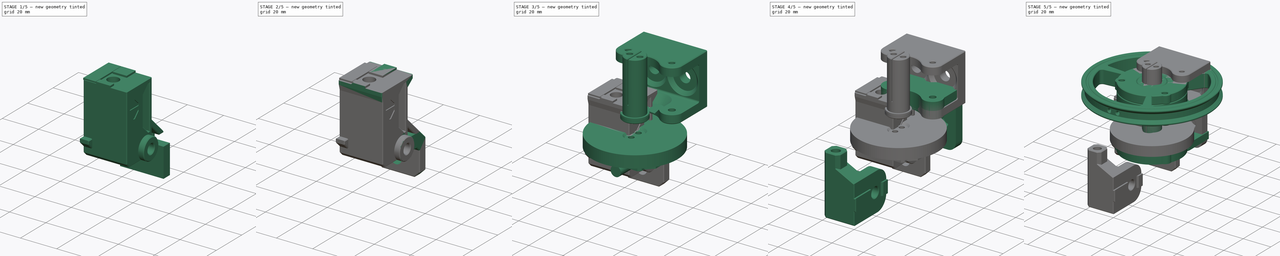
[diagram: build sequence overview — one tinted view per stage of 5, left to right]
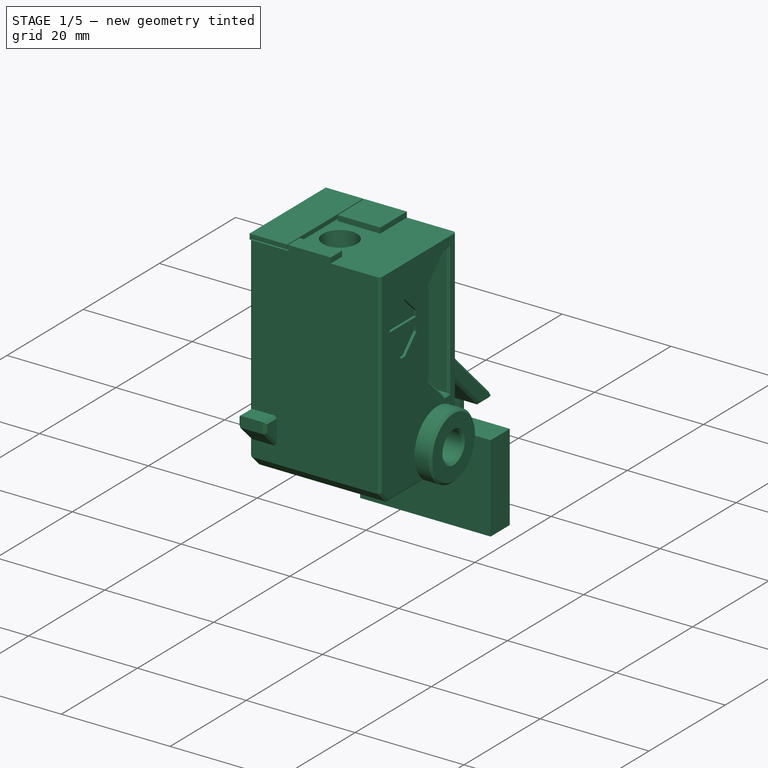
[diagram: stage 1 of 5 — iso view after this stage's code; geometry added in this stage tinted green]
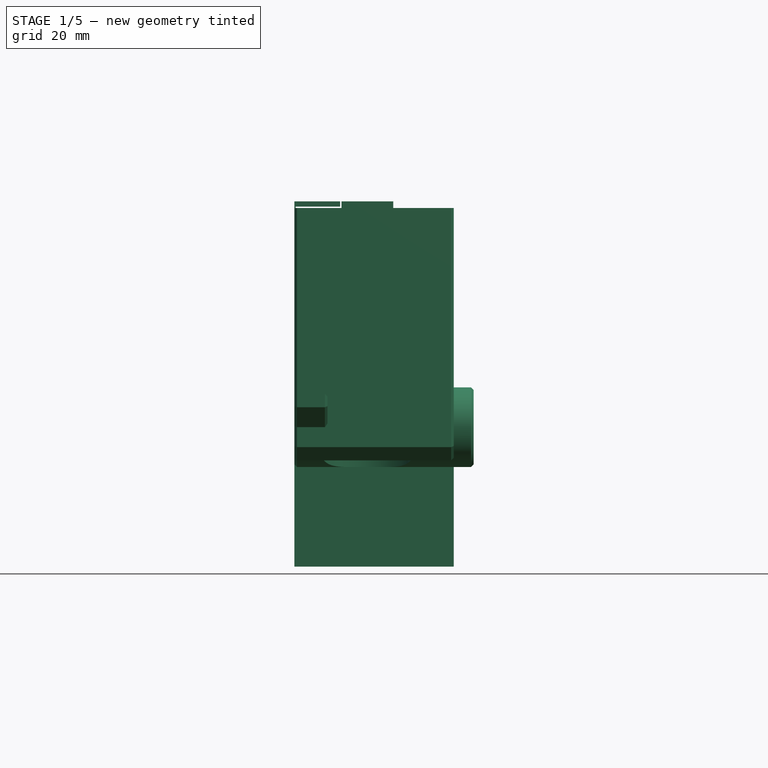
[diagram: stage 1 of 5 — front view after this stage's code; geometry added in this stage tinted green]
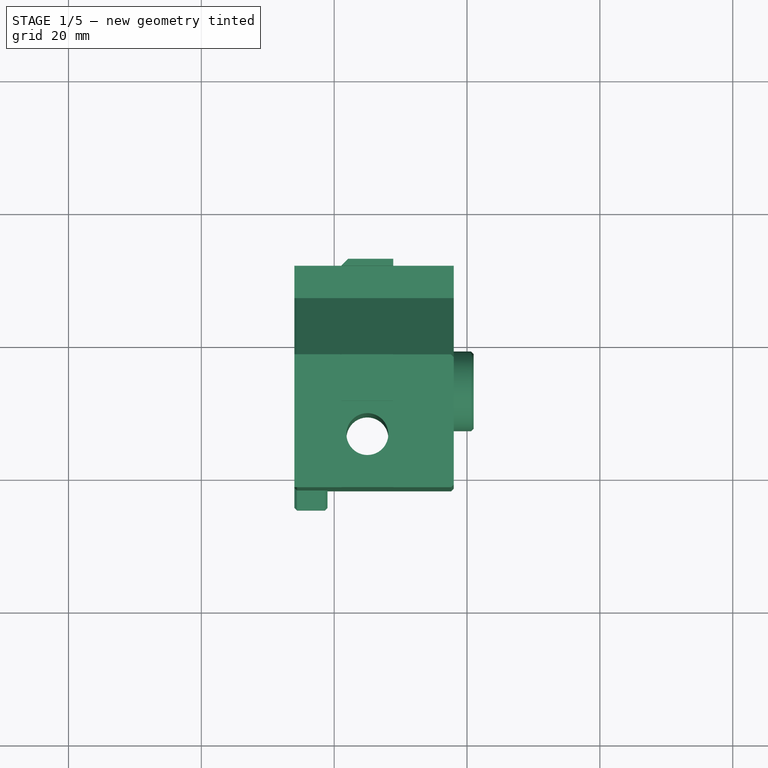
[diagram: stage 1 of 5 — top view after this stage's code; geometry added in this stage tinted green]
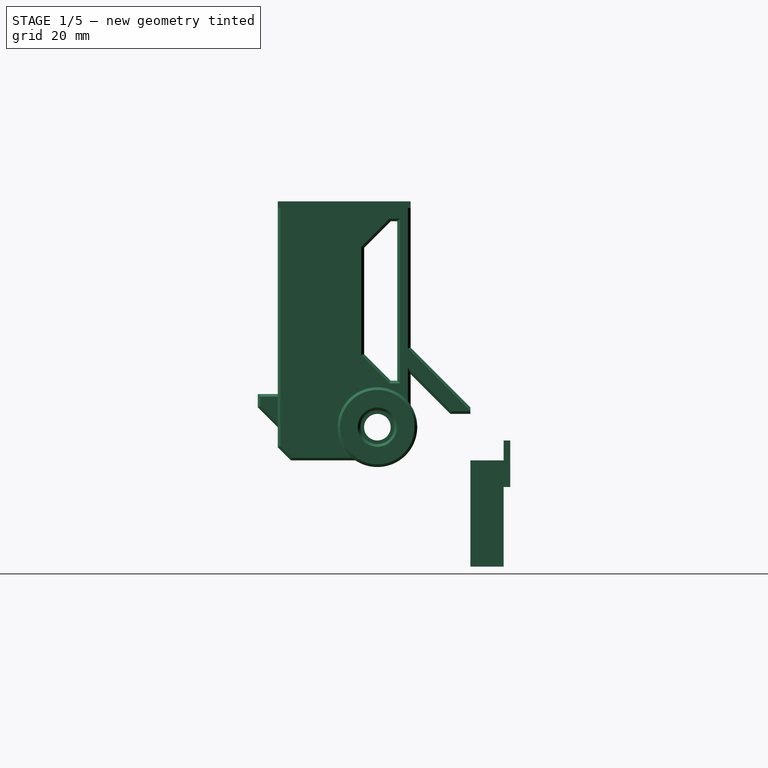
[diagram: stage 1 of 5 — right view after this stage's code; geometry added in this stage tinted green]
FCSTD DOCUMENT  (FreeCAD 0.19R24291 (Git))
Label: counter-weight-spring
License: Other
LicenseURL: GPL3
objects: Part::Chamfer×48, Sketcher::SketchObject×43, Part::Box×34, PartDesign::Pocket×29, Part::MultiFuse×26, Part::Cylinder×25, Part::Cut×21, PartDesign::Plane×19, Part::Feature×18, PartDesign::Chamfer×11, PartDesign::Pad×10, PartDesign::Body×9, Part::Fillet×4, PartDesign::Fillet×3, PartDesign::Revolution×2, Spreadsheet::Sheet×1, Part::Extrusion×1, PartDesign::FeatureBase×1, Part::Refine×1
note: 360 computed .brp shape members not serialized (recipe doc carries the construction recipe); baked Part::Feature solids carry a one-line shape summary decoded from their .brp

FEATURE [PartDesign::Body] Body001001001002003010002  label="pulley-universal"
  Group = -> [Sketch043,Revolution001,Sketch044,Pocket029,Sketch045,Pocket030,Chamfer026025]
  Origin = -> Origin009
  Placement = pos=(0,0,45) rot=(0,0,1;0rad)
  Tip = -> Chamfer026025
FEATURE [Part::Feature] Chamfer003068012002001  label="idler-mounter-pref"
  Placement = pos=(0,-20,0) rot=(0,0,1;0rad)
  shape: bbox 50.5 x 38.74 x 29 mm, 120 faces (baked)
FEATURE [Part::Cylinder] Cylinder011
  Angle = 360
  AttacherType = Attacher::AttachEngine3D
  Height = 39
  Placement = pos=(1,13,-5) rot=(0,-1,0;1.5708rad)
  Radius = 2
FEATURE [Part::Box] Box015  label="Cube015"
  AttacherType = Attacher::AttachEngine3D
  Height = 38
  Length = 24
  Placement = pos=(-26,-2,-10) rot=(0,0,1;0rad)
  Width = 20
FEATURE [Part::Cylinder] Cylinder012
  Angle = 360
  AttacherType = Attacher::AttachEngine3D
  Height = 43
  Placement = pos=(-15,6,-11) rot=(0,0,1;0rad)
  Radius = 3.15
FEATURE [Part::Box] Box017  label="Cube017"
  AttacherType = Attacher::AttachEngine3D
  Height = 24
  Length = 25
  Placement = pos=(-26,11,2) rot=(0,0,1;0rad)
  Width = 5
FEATURE [Part::Chamfer] Chamfer003068012002002
  Base = -> Box017
  Edges = 2 edges r=4: [Edge9,Edge10]
FEATURE [Part::Box] Box018  label="Cube018"
  AttacherType = Attacher::AttachEngine3D
  Height = 1
  Length = 7.8
  Placement = pos=(-18.9,11,28) rot=(0,0,1;0rad)
  Width = 7
FEATURE [Part::Cylinder] Cylinder013
  Angle = 360
  AttacherType = Attacher::AttachEngine3D
  Height = 6
  Placement = pos=(1,13,-5) rot=(0,-1,0;1.5708rad)
  Radius = 2.55
FEATURE [Part::MultiFuse] Fusion001002012005
  Shapes = -> [Cylinder013,Cylinder011]
FEATURE [Part::Cut] Cut001008
  Base = -> Box015
  Tool = -> Chamfer003068012002002
FEATURE [Part::Chamfer] Chamfer003068012002006
  Base = -> Cut001008
  Edges = 1 edges r=2: [Edge16]
FEATURE [Part::Chamfer] Chamfer003068012002007
  Base = -> Chamfer003068012002006
  Edges = 1 edges r=2: [Edge12]
FEATURE [Part::Chamfer] Chamfer003068012002009
  Base = -> Chamfer003068012002007
  Edges = 22 edges r=0.4: [Edge1,Edge2,Edge3,Edge4,Edge5,Edge7,Edge8,Edge9,Edge10,Edge11,Edge12,Edge14,Edge16,Edge18,Edge20,Edge22,Edge26,Edge29,Edge30,Edge32,Edge34,Edge36]
FEATURE [Part::Box] Box020  label="Cube020"
  AttacherType = Attacher::AttachEngine3D
  Height = 1
  Length = 7.8
  Placement = pos=(-18.9,-2,28) rot=(0,0,1;0rad)
  Width = 3
FEATURE [Part::Box] Box021  label="Cube021"
  AttacherType = Attacher::AttachEngine3D
  Height = 5
  Length = 5
  Placement = pos=(-26,-5,-5) rot=(0,0,1;0rad)
  Width = 4
FEATURE [Part::Box] Box022  label="Cube022"
  AttacherType = Attacher::AttachEngine3D
  Height = 4
  Length = 1
  Placement = pos=(-2.5,0.5,16.5) rot=(0,0,1;0rad)
  Width = 7
FEATURE [Part::Box] Box023  label="Cube023"
  AttacherType = Attacher::AttachEngine3D
  Height = 4
  Length = 1
  Placement = pos=(-2.5,0.5,11) rot=(0,0,1;0rad)
  Width = 7
FEATURE [Part::MultiFuse] Fusion001002012009
  Shapes = -> [Box023,Box022]
FEATURE [Part::Chamfer] Chamfer003068012002016
  Base = -> Fusion001002012009
  Edges = 4 edges r=3: [Edge9,Edge11,Edge22,Edge24]
  Placement = pos=(0,0,1.5) rot=(0,0,1;0rad)
FEATURE [Part::Box] Box035  label="Cube035"
  AttacherType = Attacher::AttachEngine3D
  Height = 16
  Length = 24
  Placement = pos=(-26,27,-26) rot=(0,0,1;0rad)
  Width = 5
FEATURE [Part::Box] Box036  label="Cube036"
  AttacherType = Attacher::AttachEngine3D
  Height = 7
  Length = 7.8
  Placement = pos=(-18.9,32,-14) rot=(0,0,1;0rad)
  Width = 1
FEATURE [Part::Chamfer] Chamfer003068012002037
  Base = -> Box036
  Edges = 1 edges r=0.99: [Edge3]
FEATURE [Part::Box] Box037  label="Cube037"
  AttacherType = Attacher::AttachEngine3D
  Height = 10
  Length = 24
  Placement = pos=(-26,13,-7) rot=(0,0,1;0rad)
  Width = 10
FEATURE [Part::Box] Box038  label="Cube038"
  AttacherType = Attacher::AttachEngine3D
  Height = 10
  Length = 24
  Placement = pos=(-26,17,-3) rot=(0,0,1;0rad)
  Width = 10
FEATURE [Part::Chamfer] Chamfer003068012002038
  Base = -> Box038
  Edges = 1 edges r=9: [Edge12]
FEATURE [Part::Chamfer] Chamfer003068012002039
  Base = -> Box037
  Edges = 1 edges r=9: [Edge12]
  Placement = pos=(0,2,2) rot=(0,0,1;0rad)
FEATURE [Part::Cut] Cut001022
  Base = -> Chamfer003068012002038
  Tool = -> Chamfer003068012002039
FEATURE [Part::Chamfer] Chamfer003068012002040
  Base = -> Cut001022
  Edges = 8 edges r=0.4: [Edge1,Edge3,Edge4,Edge5,Edge8,Edge12,Edge15,Edge16]
FEATURE [Part::Chamfer] Chamfer003068012002041
  Base = -> Box021
  Edges = 1 edges r=3: [Edge9]
FEATURE [Part::Chamfer] Chamfer003068012002042
  Base = -> Chamfer003068012002041
  Edges = 6 edges r=0.4: [Edge1,Edge2,Edge5,Edge6,Edge9,Edge12]
FEATURE [Part::Cylinder] Cylinder023
  Angle = 360
  AttacherType = Attacher::AttachEngine3D
  Height = 27
  Placement = pos=(1,13,-5) rot=(0,-1,0;1.5708rad)
  Radius = 6
FEATURE [Part::Chamfer] Chamfer003068012002044
  Base = -> Cylinder023
  Edges = 1 edges r=0.4: [Edge1]
FEATURE [Part::MultiFuse] Fusion001002012022
  Shapes = -> [Chamfer003068012002044,Chamfer003068012002009]
FEATURE [Part::Cylinder] Cylinder024
  Angle = 360
  AttacherType = Attacher::AttachEngine3D
  Height = 2
  Placement = pos=(-15,6,-12) rot=(0,0,1;0rad)
  Radius = 7.5
FEATURE [Part::MultiFuse] Fusion001002012023
  Shapes = -> [Box018,Box020]
FEATURE [Part::MultiFuse] Fusion001002012024
  Shapes = -> [Fusion001002012022,Fusion001002012023,Chamfer003068012002042]
FEATURE [Part::Cut] Cut001023
  Base = -> Fusion001002012024
  Tool = -> Chamfer003068012002016
FEATURE [Part::Cut] Cut001024
  Base = -> Cut001023
  Tool = -> Fusion001002012005
FEATURE [Part::Cut] Cut001025
  Base = -> Cut001024
  Tool = -> Cylinder012
FEATURE [Part::Cut] Cut001026
  Base = -> Cut001025
  Refine = true
  Tool = -> Cylinder024
FEATURE [Part::Chamfer] Chamfer003068012002045  label="universal-pulley-mount"
  Base = -> Cut001026
  Edges = 4 edges r=0.4: [Edge11,Edge43,Edge126,Edge178]
FEATURE [Part::Box] Box039  label="Cube039"
  AttacherType = Attacher::AttachEngine3D
  Height = 1
  Length = 0.2
  Placement = pos=(-26,-2,28) rot=(0,0,1;0rad)
  Width = 20
FEATURE [Part::Box] Box040  label="Cube040"
  AttacherType = Attacher::AttachEngine3D
  Height = 0.8
  Length = 6.9
  Placement = pos=(-26,-2,28.2) rot=(0,0,1;0rad)
  Width = 20
FEATURE [Part::MultiFuse] Fusion001002012025  label="custom-support"
  Shapes = -> [Box040,Box039]
FEATURE [Part::Feature] Body001001001002003010003  label="pulley-35mm"
  shape: bbox 74 x 74 x 25 mm, 117 faces (baked)
FEATURE [Part::Feature] Body001001001002003010004  label="pulley-40mm"
  shape: bbox 84 x 84 x 25 mm, 117 faces (baked)
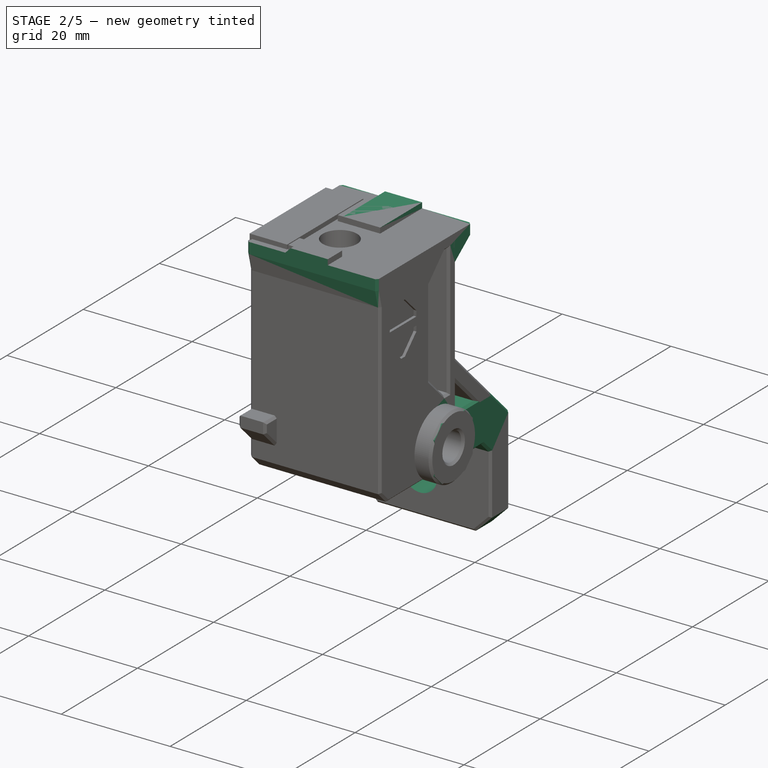
[diagram: stage 2 of 5 — iso view after this stage's code; geometry added in this stage tinted green]
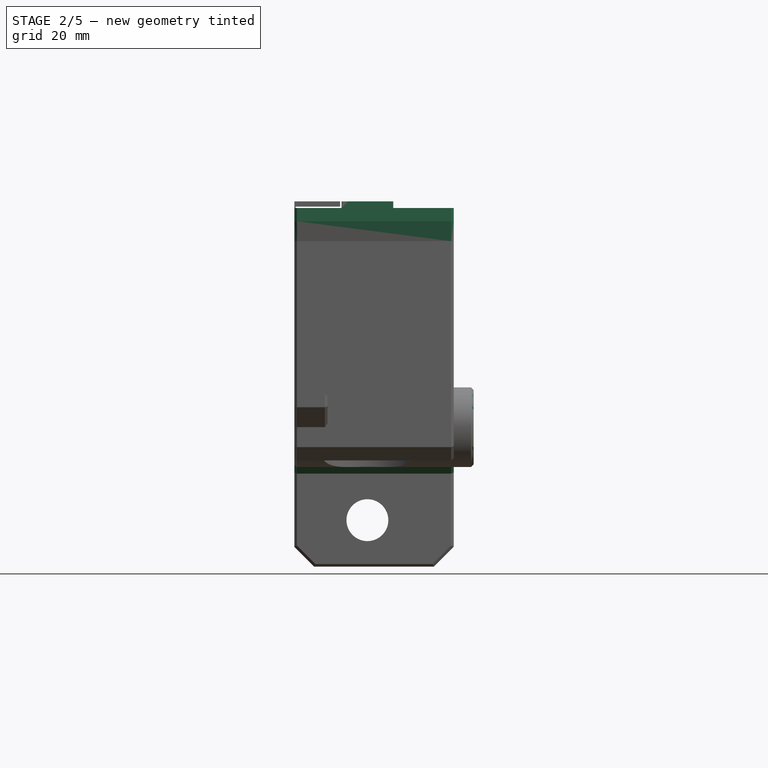
[diagram: stage 2 of 5 — front view after this stage's code; geometry added in this stage tinted green]
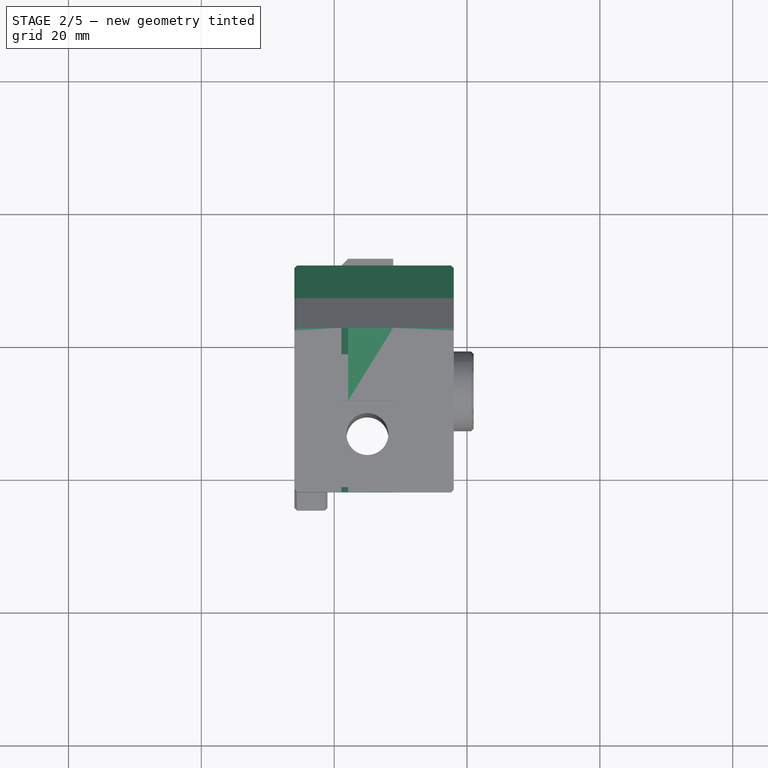
[diagram: stage 2 of 5 — top view after this stage's code; geometry added in this stage tinted green]
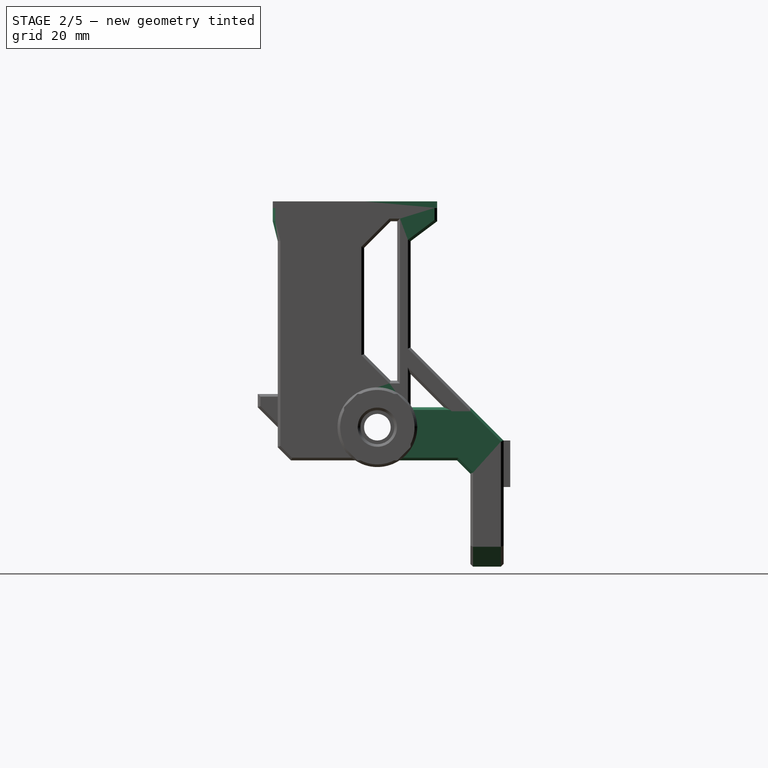
[diagram: stage 2 of 5 — right view after this stage's code; geometry added in this stage tinted green]
FEATURE [Part::Cylinder] Cylinder015
  Angle = 360
  AttacherType = Attacher::AttachEngine3D
  Height = 39
  Placement = pos=(1,13,-5) rot=(0,-1,0;1.5708rad)
  Radius = 2
FEATURE [Part::Box] Box024  label="Cube024"
  AttacherType = Attacher::AttachEngine3D
  Height = 38
  Length = 24
  Placement = pos=(-26,-2,-10) rot=(0,0,1;0rad)
  Width = 20
FEATURE [Part::Cylinder] Cylinder016
  Angle = 360
  AttacherType = Attacher::AttachEngine3D
  Height = 43
  Placement = pos=(-15,6,-11) rot=(0,0,1;0rad)
  Radius = 3.15
FEATURE [Part::Box] Box025  label="Cube025"
  AttacherType = Attacher::AttachEngine3D
  Height = 10
  Length = 4
  Placement = pos=(-3,8,-10) rot=(0,0,1;0rad)
  Width = 10
FEATURE [Part::Box] Box026  label="Cube026"
  AttacherType = Attacher::AttachEngine3D
  Height = 24
  Length = 25
  Placement = pos=(-26,11,2) rot=(0,0,1;0rad)
  Width = 5
FEATURE [Part::Chamfer] Chamfer003068012002018
  Base = -> Box026
  Edges = 2 edges r=4: [Edge9,Edge10]
FEATURE [Part::Box] Box027  label="Cube027"
  AttacherType = Attacher::AttachEngine3D
  Height = 1
  Length = 7.8
  Placement = pos=(-18.9,11,28) rot=(0,0,1;0rad)
  Width = 11
FEATURE [Part::Cylinder] Cylinder017
  Angle = 360
  AttacherType = Attacher::AttachEngine3D
  Height = 6
  Placement = pos=(1,13,-5) rot=(0,-1,0;1.5708rad)
  Radius = 2.55
FEATURE [Part::MultiFuse] Fusion001002012010
  Shapes = -> [Cylinder017,Cylinder015]
FEATURE [Part::Cut] Cut001015
  Base = -> Box024
  Tool = -> Chamfer003068012002018
FEATURE [Part::Chamfer] Chamfer003068012002019
  Base = -> Cut001015
  Edges = 1 edges r=2: [Edge16]
FEATURE [Part::Chamfer] Chamfer003068012002020
  Base = -> Chamfer003068012002019
  Edges = 1 edges r=2: [Edge12]
FEATURE [Part::Chamfer] Chamfer003068012002021
  Base = -> Box025
  Edges = 4 edges r=2: [Edge9,Edge10,Edge11,Edge12]
FEATURE [Part::Box] Box028  label="Cube028"
  AttacherType = Attacher::AttachEngine3D
  Height = 1
  Length = 7.8
  Placement = pos=(-18.9,-2.75,28) rot=(0,0,1;0rad)
  Width = 3.75
FEATURE [Part::Box] Box030  label="Cube030"
  AttacherType = Attacher::AttachEngine3D
  Height = 4
  Length = 1
  Placement = pos=(-2.5,0.5,16.5) rot=(0,0,1;0rad)
  Width = 7
FEATURE [Part::Box] Box031  label="Cube031"
  AttacherType = Attacher::AttachEngine3D
  Height = 4
  Length = 1
  Placement = pos=(-2.5,0.5,11) rot=(0,0,1;0rad)
  Width = 7
FEATURE [Part::MultiFuse] Fusion001002012012
  Shapes = -> [Box031,Box030]
FEATURE [Part::Chamfer] Chamfer003068012002027
  Base = -> Fusion001002012012
  Edges = 4 edges r=3: [Edge9,Edge11,Edge22,Edge24]
  Placement = pos=(0,0,1.5) rot=(0,0,1;0rad)
FEATURE [Part::Box] Box032  label="Cube032"
  AttacherType = Attacher::AttachEngine3D
  Height = 5
  Length = 24
  Placement = pos=(-26,-2.75,23) rot=(0,0,1;0rad)
  Width = 2
FEATURE [Part::Box] Box033  label="Cube033"
  AttacherType = Attacher::AttachEngine3D
  Height = 5
  Length = 24
  Placement = pos=(-26,17,23) rot=(0,0,1;0rad)
  Width = 5
FEATURE [Part::Chamfer] Chamfer003068012002028
  Base = -> Box032
  Edges = 1 edges: [Edge9 r1=3 r2=0.75]
FEATURE [Part::Chamfer] Chamfer003068012002029
  Base = -> Box033
  Edges = 1 edges: [Edge11 r1=3 r2=4]
FEATURE [Part::MultiFuse] Fusion001002012013
  Shapes = -> [Chamfer003068012002029,Chamfer003068012002020,Chamfer003068012002028]
FEATURE [Part::MultiFuse] Fusion001002012014
  Shapes = -> [Box028,Box027]
FEATURE [Part::Chamfer] Chamfer003068012002030
  Base = -> Fusion001002012014
  Edges = 2 edges r=0.99: [Edge2,Edge14]
FEATURE [Part::MultiFuse] Fusion001002012015
  Refine = true
  Shapes = -> [Chamfer003068012002030,Fusion001002012013]
FEATURE [Part::Chamfer] Chamfer003068012002031
  Base = -> Fusion001002012015
  Edges = 30 edges r=0.4: [Edge16,Edge18,Edge20,Edge21,Edge23,Edge24,Edge26,Edge28,Edge29,Edge30,Edge32,Edge34,Edge36,Edge37,Edge38,Edge40,Edge59,Edge60,Edge61,Edge62,Edge63,Edge64,Edge65,Edge67,Edge69,Edge72,Edge74,Edge75,Edge77,Edge78]
FEATURE [Part::MultiFuse] Fusion001002012016
  Shapes = -> [Chamfer003068012002031,Chamfer003068012002021]
FEATURE [Part::Cut] Cut001016
  Base = -> Fusion001002012016
  Tool = -> Chamfer003068012002027
FEATURE [Part::Cut] Cut001017
  Base = -> Cut001016
  Tool = -> Fusion001002012010
FEATURE [Part::Cut] Cut001018
  Base = -> Cut001017
  Tool = -> Cylinder016
FEATURE [Part::Chamfer] Chamfer003068012002032
  Base = -> Cut001018
  Edges = 3 edges r=0.4: [Edge53,Edge100,Edge206]
FEATURE [Part::Box] Box034  label="Cube034"
  AttacherType = Attacher::AttachEngine3D
  Height = 8
  Length = 24
  Placement = pos=(-26,16,-10) rot=(0,0,1;0rad)
  Width = 16
FEATURE [Part::Cylinder] Cylinder018
  Angle = 360
  AttacherType = Attacher::AttachEngine3D
  Height = 10
  Placement = pos=(-15,25,-19) rot=(-1,0,0;1.5708rad)
  Radius = 3.15
FEATURE [Part::MultiFuse] Fusion001002012017
  Shapes = -> [Box034,Box035]
FEATURE [Part::Cut] Cut001019
  Base = -> Fusion001002012017
  Refine = true
  Tool = -> Cylinder018
FEATURE [Part::Chamfer] Chamfer003068012002033
  Base = -> Cut001019
  Edges = 1 edges r=2: [Edge9]
FEATURE [Part::Chamfer] Chamfer003068012002034
  Base = -> Chamfer003068012002033
  Edges = 1 edges r=5: [Edge22]
FEATURE [Part::Chamfer] Chamfer003068012002035
  Base = -> Chamfer003068012002034
  Edges = 2 edges r=3: [Edge4,Edge21]
FEATURE [Part::Chamfer] Chamfer003068012002036
  Base = -> Chamfer003068012002035
  Edges = 18 edges r=0.4: [Edge1,Edge3,Edge4,Edge5,Edge7,Edge8,Edge9,Edge10,Edge11,Edge12,Edge15,Edge17,Edge19,Edge20,Edge21,Edge25,Edge27,Edge30]
FEATURE [Part::MultiFuse] Fusion001002012018
  Shapes = -> [Chamfer003068012002032,Chamfer003068012002036]
FEATURE [Part::MultiFuse] Fusion001002012019
  Refine = true
  Shapes = -> [Chamfer003068012002037,Fusion001002012018]
FEATURE [Part::MultiFuse] Fusion001002012020
  Shapes = -> [Chamfer003068012002040,Fusion001002012019]
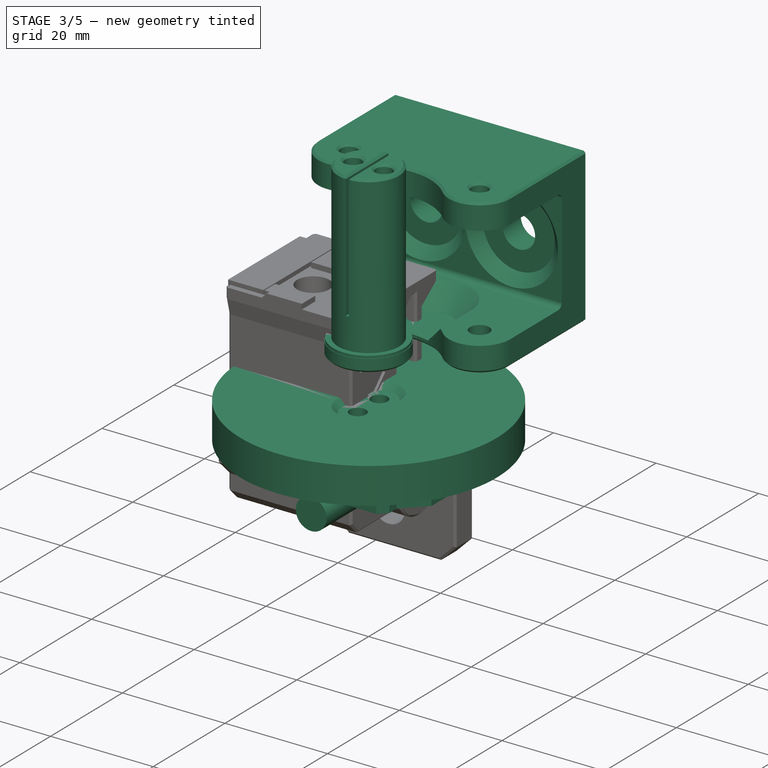
[diagram: stage 3 of 5 — iso view after this stage's code; geometry added in this stage tinted green]
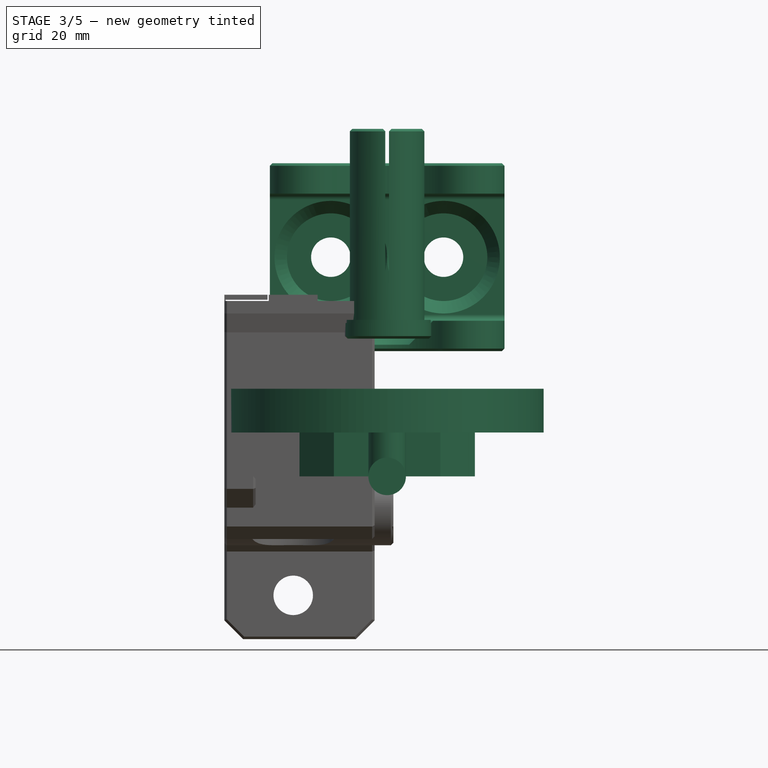
[diagram: stage 3 of 5 — front view after this stage's code; geometry added in this stage tinted green]
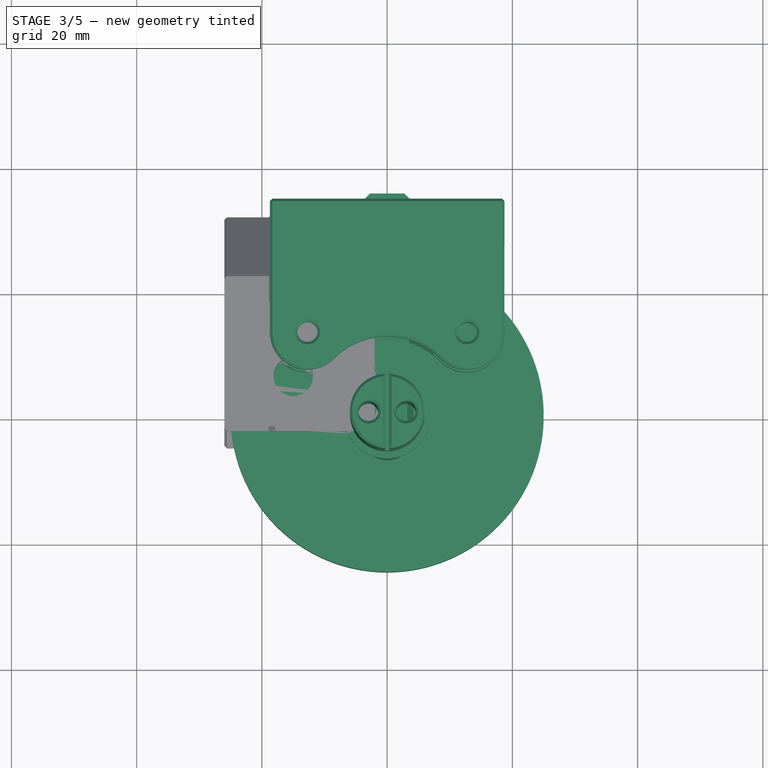
[diagram: stage 3 of 5 — top view after this stage's code; geometry added in this stage tinted green]
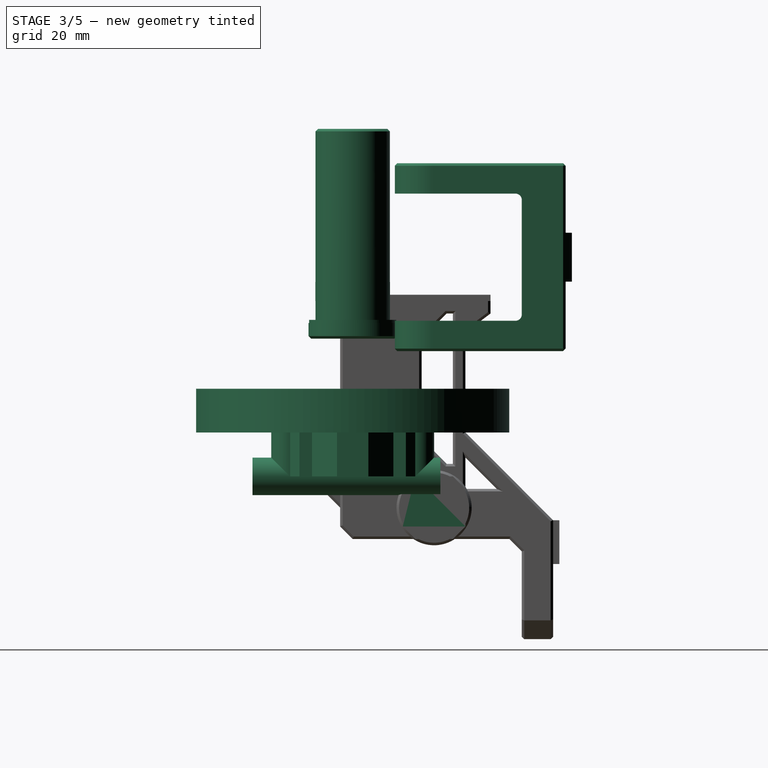
[diagram: stage 3 of 5 — right view after this stage's code; geometry added in this stage tinted green]
FEATURE [PartDesign::Body] Body001001001002003007  label="spacer"
  Group = -> [Sketch041,Pad009]
  Origin = -> Origin007
  Tip = -> Pad009
FEATURE [Part::Feature] Chamfer004013007011015006002001_cs
  shape: bbox 28 x 20 x 3e-07 mm, 0 faces, 0 solids (baked)
FEATURE [Part::Extrusion] Extrude
  Base = -> Chamfer004013007011015006002001_cs
  Dir = (0,0,1)
  DirMode = 2
  FaceMakerClass = Part::FaceMakerBullseye
  LengthFwd = 9
  LengthRev = 0
  Solid = true
  Symmetric = false
FEATURE [Part::Cylinder] Cylinder003
  Angle = 360
  AttacherType = Attacher::AttachEngine3D
  Height = 9
  Radius = 5
FEATURE [Part::MultiFuse] Fusion001002010
  Shapes = -> [Cylinder003,Extrude]
FEATURE [Part::Cylinder] Cylinder004
  Angle = 360
  AttacherType = Attacher::AttachEngine3D
  Height = 10
  Placement = pos=(0,0,4) rot=(0,0,1;0rad)
  Radius = 1.9
FEATURE [Part::Cut] Cut001004
  Base = -> Fusion001002010
  Tool = -> Cylinder004
FEATURE [Part::Cylinder] Cylinder005
  Angle = 360
  AttacherType = Attacher::AttachEngine3D
  Height = 10
  Placement = pos=(0,-10,0) rot=(0,0,1;0rad)
  Radius = 3
FEATURE [Part::Cylinder] Cylinder006
  Angle = 360
  AttacherType = Attacher::AttachEngine3D
  Height = 30
  Placement = pos=(0,-16,0) rot=(-1,0,0;1.5708rad)
  Radius = 3
FEATURE [Part::Cylinder] Cylinder007
  Angle = 360
  AttacherType = Attacher::AttachEngine3D
  Height = 10
  Placement = pos=(0,10,0) rot=(0,0,1;0rad)
  Radius = 3
FEATURE [Part::MultiFuse] Fusion001002011
  Shapes = -> [Cylinder005,Cylinder006,Cylinder007]
FEATURE [Part::Feature] Body001001001002003008  label="mounting-arm005"
  Placement = pos=(0,0,20) rot=(0,0,1;0rad)
  shape: bbox 37.46 x 25.27 x 4.85 mm, 10 faces (baked)
FEATURE [Part::Feature] Body001001001002003009  label="mounting-arm006"
  Placement = pos=(0,0,45.15) rot=(0,0,1;0rad)
  shape: bbox 37.46 x 25.27 x 4.85 mm, 10 faces (baked)
FEATURE [Part::Box] Box012  label="Cube012"
  AttacherType = Attacher::AttachEngine3D
  Height = 30
  Length = 37.46
  Placement = pos=(-18.73,27,20) rot=(0,0,1;0rad)
  Width = 7
FEATURE [Part::Cylinder] Cylinder008
  Angle = 360
  AttacherType = Attacher::AttachEngine3D
  Height = 10
  Placement = pos=(0,26,35) rot=(-1,0,0;1.5708rad)
  Radius = 3.15
FEATURE [Part::Box] Box014  label="Cube014"
  AttacherType = Attacher::AttachEngine3D
  Height = 7.8
  Length = 7.46
  Placement = pos=(-3.73,34,31.1) rot=(0,0,1;0rad)
  Width = 1
FEATURE [Part::Cylinder] Cylinder009
  Angle = 360
  AttacherType = Attacher::AttachEngine3D
  Height = 2
  Placement = pos=(0,27,35) rot=(-1,0,0;1.5708rad)
  Radius = 7
FEATURE [Part::MultiFuse] Fusion001002012
  Placement = pos=(9,0,0) rot=(0,0,1;0rad)
  Shapes = -> [Cylinder009,Cylinder008]
FEATURE [Part::Feature] Fusion001002012001
  Placement = pos=(-9,0,0) rot=(0,0,1;0rad)
  shape: bbox 14 x 10 x 14 mm, 7 faces (baked)
FEATURE [Part::MultiFuse] Fusion001002012002
  Shapes = -> [Fusion001002012,Fusion001002012001]
FEATURE [Part::Cut] Cut001006
  Base = -> Box012
  Tool = -> Fusion001002012002
FEATURE [Part::Chamfer] Chamfer026021
  Base = -> Cut001006
  Edges = 2 edges r=1.99: [Edge8,Edge9]
FEATURE [Part::Chamfer] Chamfer026022
  Base = -> Box014
  Edges = 2 edges r=0.99: [Edge3,Edge7]
FEATURE [Part::MultiFuse] Fusion001002012003  label="universal-mount-draf"
  Shapes = -> [Body001001001002003008,Body001001001002003009,Chamfer026021,Chamfer026022]
FEATURE [PartDesign::FeatureBase] BaseFeature
  BaseFeature = -> Fusion001002012003
FEATURE [Sketcher::SketchObject] Sketch042
  FullyConstrained = true
  MapMode = 5
  Placement = pos=(0,0,20) rot=(1,0,0;3.14159rad)
  Support = -> [BaseFeature]
  sketch-geometry (5):
    g0: Circle CenterX=0 CenterY=0 CenterZ=0 NormalX=0 NormalY=0 NormalZ=1 AngleXU=0 Radius=18
    g1: LineSegment StartX=0 StartY=0 StartZ=0 EndX=-12.7279 EndY=-12.7279 EndZ=0
    g2: LineSegment StartX=0 StartY=0 StartZ=0 EndX=12.7279 EndY=-12.7279 EndZ=0
    g3: Circle CenterX=-12.7279 CenterY=-12.7279 CenterZ=0 NormalX=0 NormalY=0 NormalZ=1 AngleXU=0 Radius=1.9
    g4: Circle CenterX=12.7279 CenterY=-12.7279 CenterZ=0 NormalX=0 NormalY=0 NormalZ=1 AngleXU=0 Radius=1.9
  constraints (12):
    c: Coincident(g0,g-1)
    c: Coincident(g1,g-1)
    c: PointOnObject(g1,g0)
    c: Coincident(g2,g-1)
    c: PointOnObject(g2,g0)
    c: Radius(g0) = 18
    c: Angle(g-2,g1) = 2.35619
    c: Angle(g2,g-2) = 2.35619
    c: Coincident(g3,g1)
    c: Coincident(g4,g2)
    c: Radius(g3) = 1.9
    c: Radius(g4) = 1.9
FEATURE [PartDesign::Pocket] Pocket028
  BaseFeature = -> BaseFeature
  Length = 5
  Length2 = 100
  Profile = -> Sketch042
  Type = 0
FEATURE [PartDesign::Body] Body001001001002003010  label="universal-mount-modify"
  BaseFeature = -> Fusion001002012003
  Group = -> [BaseFeature,Sketch042,Pocket028]
  Origin = -> Origin008
  Tip = -> Pocket028
FEATURE [Part::Refine] Body001001001002003010001  label="universal-mount-modify001"
  Source = -> Body001001001002003010
FEATURE [Part::Chamfer] Chamfer026023
  Base = -> Body001001001002003010001
  Edges = 26 edges r=0.4: [Edge3,Edge5,Edge9,Edge16,Edge18,Edge20,Edge24,Edge29,Edge30,Edge31,Edge33,Edge35,Edge36,Edge37,Edge40,Edge47,Edge49,Edge50,Edge51,Edge56,Edge57,Edge65,Edge67,Edge68,Edge70,Edge72]
FEATURE [Part::Feature] Body003001  label="axis001"
  Placement = pos=(0,0,22) rot=(0,0,1;0rad)
  shape: bbox 14.1 x 14.1 x 43 mm, 25 faces (baked)
FEATURE [Part::Cylinder] Cylinder010
  Angle = 360
  AttacherType = Attacher::AttachEngine3D
  Height = 17
  Placement = pos=(0,0,55.5) rot=(0,0,1;0rad)
  Radius = 10
FEATURE [Sketcher::SketchObject] Sketch043
  FullyConstrained = true
  MapMode = 5
  Placement = pos=(0,0,0) rot=(0.57735,0.57735,0.57735;2.0944rad)
  Support = -> [YZ_Plane009]
  sketch-geometry (12):
    g0: LineSegment StartX=-6.05 StartY=0 StartZ=0 EndX=-6.05 EndY=10.5 EndZ=0
    g1: LineSegment StartX=-6.05 StartY=10.5 StartZ=0 EndX=0 EndY=10.5 EndZ=0
    g2: LineSegment StartX=0 StartY=10.5 StartZ=0 EndX=0 EndY=14 EndZ=0
    g3: LineSegment StartX=0 StartY=14 StartZ=0 EndX=-25 EndY=14 EndZ=0
    g4: LineSegment StartX=-25 StartY=14 StartZ=0 EndX=-25 EndY=7 EndZ=0
    g5: LineSegment StartX=-6.05 StartY=0 StartZ=0 EndX=-7.05 EndY=0 EndZ=0
    g6: LineSegment StartX=-25 StartY=7 StartZ=0 EndX=-22 EndY=7 EndZ=0
    g7: LineSegment StartX=-22 StartY=7 StartZ=0 EndX=-21 EndY=8 EndZ=0
    g8: LineSegment StartX=-21 StartY=8 StartZ=0 EndX=-15 EndY=8 EndZ=0
    g9: LineSegment StartX=-15 StartY=8 StartZ=0 EndX=-14 EndY=7 EndZ=0
    g10: LineSegment StartX=-14 StartY=7 StartZ=0 EndX=-9.05 EndY=7 EndZ=0
    g11: LineSegment StartX=-9.05 StartY=7 StartZ=0 EndX=-7.05 EndY=0 EndZ=0
  constraints (36):
    c: PointOnObject(g0,g-1)
    c: Vertical(g0)
    c: Coincident(g1,g0)
    c: PointOnObject(g1,g-2)
    c: Horizontal(g1)
    c: Coincident(g2,g1)
    c: PointOnObject(g2,g-2)
    c: Coincident(g3,g2)
    c: Horizontal(g3)
    c: DistanceX(g0,g-1) = 6.05
    c: DistanceY(g0,g0) = 10.5
    c: Coincident(g4,g3)
    c: Vertical(g4)
    c: DistanceY(g4,g4) = 7
    c: DistanceY(g-1,g4) = 7
    c: DistanceX(g3,g3) = 25
    c: Coincident(g5,g0)
    c: PointOnObject(g5,g-1)
    c: DistanceX(g5,g5) = 1
    c: Coincident(g6,g4)
    c: Horizontal(g6)
    c: Coincident(g7,g6)
    c: Coincident(g8,g7)
    c: Horizontal(g8)
    c: Coincident(g9,g8)
    c: Coincident(g10,g9)
    c: Horizontal(g10)
    c: Coincident(g11,g10)
    c: Coincident(g11,g5)
    c: DistanceY(g5,g10) = 7
    c: DistanceX(g10,g0) = 3
    c: DistanceY(g9,g8) = 1
    c: DistanceX(g8,g9) = 1
    c: DistanceX(g6,g7) = 1
    c: DistanceX(g9,g-1) = 14
    c: DistanceX(g8,g8) = 6
FEATURE [PartDesign::Revolution] Revolution001
  Angle = 360
  Axis = (-2e-16,3e-16,1)
  Base = (0,0,0)
  Placement = pos=(0,0,0) rot=(0.57735,0.57735,0.57735;2.0944rad)
  Profile = -> Sketch043
  ReferenceAxis = -> Sketch043 [V_Axis]
FEATURE [Sketcher::SketchObject] Sketch044
  FullyConstrained = true
  MapMode = 5
  Placement = pos=(-6.2e-15,3.9e-15,14) rot=(0,0,-1;1.5708rad)
  Support = -> [Revolution001]
  sketch-geometry (2):
    g0: Circle CenterX=-3 CenterY=0 CenterZ=0 NormalX=0 NormalY=0 NormalZ=1 AngleXU=0 Radius=1.6
    g1: Circle CenterX=3 CenterY=0 CenterZ=0 NormalX=0 NormalY=0 NormalZ=1 AngleXU=0 Radius=1.6
  constraints (6):
    c: PointOnObject(g0,g-1)
    c: PointOnObject(g1,g-1)
    c: DistanceX(g0,g-1) = 3
    c: DistanceX(g-1,g1) = 3
    c: Radius(g0) = 1.6
    c: Radius(g1) = 1.6
FEATURE [PartDesign::Pocket] Pocket029
  BaseFeature = -> Revolution001
  Length = 5
  Length2 = 100
  Placement = pos=(0,0,0) rot=(0.57735,0.57735,0.57735;2.0944rad)
  Profile = -> Sketch044
  Type = 1
FEATURE [Part::Cut] Cut001007
  Base = -> Body003001
  Tool = -> Cylinder010
FEATURE [Part::Chamfer] Chamfer026024  label="axis-short-5p5"
  Base = -> Cut001007
  Edges = 7 edges r=0.4: [Edge21,Edge25,Edge29,Edge32,Edge33,Edge36,Edge37]
FEATURE [Sketcher::SketchObject] Sketch045
  FullyConstrained = true
  MapMode = 5
  Placement = pos=(-6.2e-15,3.9e-15,14) rot=(0,0,-1;1.5708rad)
  Support = -> [Pocket029]
  sketch-geometry (4):
    g0: ArcOfCircle CenterX=-3 CenterY=0 CenterZ=0 NormalX=0 NormalY=0 NormalZ=1 AngleXU=0 Radius=3.2 StartAngle=1.5708 EndAngle=4.71239
    g1: ArcOfCircle CenterX=3 CenterY=0 CenterZ=0 NormalX=0 NormalY=0 NormalZ=1 AngleXU=0 Radius=3.2 StartAngle=4.71239 EndAngle=7.85398
    g2: LineSegment StartX=-3 StartY=-3.2 StartZ=0 EndX=3 EndY=-3.2 EndZ=0
    g3: LineSegment StartX=-3 StartY=3.2 StartZ=0 EndX=3 EndY=3.2 EndZ=0
  constraints (10):
    c: Tangent(g0,g3) = 1.5708
    c: Tangent(g0,g2) = -1.5708
    c: Tangent(g2,g1) = -1.5708
    c: Tangent(g3,g1) = 1.5708
    c: Horizontal(g2)
    c: Equal(g0,g1)
    c: PointOnObject(g0,g-1)
    c: DistanceX(g0,g-1) = 3
    c: DistanceX(g-1,g1) = 3
    c: Radius(g1) = 3.2
FEATURE [PartDesign::Pocket] Pocket030
  BaseFeature = -> Pocket029
  Length = 1
  Length2 = 100
  Placement = pos=(0,0,0) rot=(0.57735,0.57735,0.57735;2.0944rad)
  Profile = -> Sketch045
  Type = 0
FEATURE [PartDesign::Chamfer] Chamfer026025
  Angle = 45
  Base = -> Pocket030 [Edge27,Edge26,Edge22,Edge24]
  BaseFeature = -> Pocket030
  ChamferType = 0
  FlipDirection = false
  Placement = pos=(0,0,0) rot=(0.57735,0.57735,0.57735;2.0944rad)
  Size = 0.99
  Size2 = 1
  SupportTransform = false
FEATURE [Part::Box] Box016  label="Cube016"
  AttacherType = Attacher::AttachEngine3D
  Height = 10
  Length = 4
  Placement = pos=(-3,8,-10) rot=(0,0,1;0rad)
  Width = 10
FEATURE [Part::Chamfer] Chamfer003068012002008
  Base = -> Box016
  Edges = 4 edges r=2: [Edge9,Edge10,Edge11,Edge12]
FEATURE [Part::Cylinder] Cylinder014
  Angle = 360
  AttacherType = Attacher::AttachEngine3D
  Height = 4
  Placement = pos=(0,18,45) rot=(0,0,1;0rad)
  Radius = 3.5
FEATURE [Part::Box] Box019  label="Cube019"
  AttacherType = Attacher::AttachEngine3D
  Height = 4
  Length = 7
  Placement = pos=(-3.5,8,45) rot=(0,0,1;0rad)
  Width = 10
FEATURE [Part::MultiFuse] Fusion001002012007
  Placement = pos=(0,0,-24) rot=(0,0,1;0rad)
  Shapes = -> [Cylinder014,Box019]
FEATURE [Part::Cut] Cut001011
  Base = -> Chamfer026023
  Tool = -> Fusion001002012007
FEATURE [Part::Chamfer] Chamfer003068012002011
  Base = -> Cut001011
  Edges = 3 edges r=3.84: [Edge12,Edge13,Edge14]
FEATURE [Part::Fillet] Fillet003002006  label="univesal-mount-r1"
  Base = -> Chamfer003068012002011
  Edges = 2 edges r=1: [Edge4,Edge35]
FEATURE [Part::Cylinder] Cylinder019
  Angle = 360
  AttacherType = Attacher::AttachEngine3D
  Height = 1
  Radius = 2.2
FEATURE [Part::Cylinder] Cylinder020
  Angle = 360
  AttacherType = Attacher::AttachEngine3D
  Height = 1
  Radius = 3.15
FEATURE [Part::Cylinder] Cylinder021
  Angle = 360
  AttacherType = Attacher::AttachEngine3D
  Height = 0.5
  Radius = 3.15
FEATURE [Part::Cylinder] Cylinder022
  Angle = 360
  AttacherType = Attacher::AttachEngine3D
  Height = 0.5
  Radius = 2.2
FEATURE [Part::Cut] Cut001020  label="1mm-spacer"
  Base = -> Cylinder020
  Tool = -> Cylinder019
FEATURE [Part::Cut] Cut001021  label="0p5-spacer"
  Base = -> Cylinder021
  Tool = -> Cylinder022
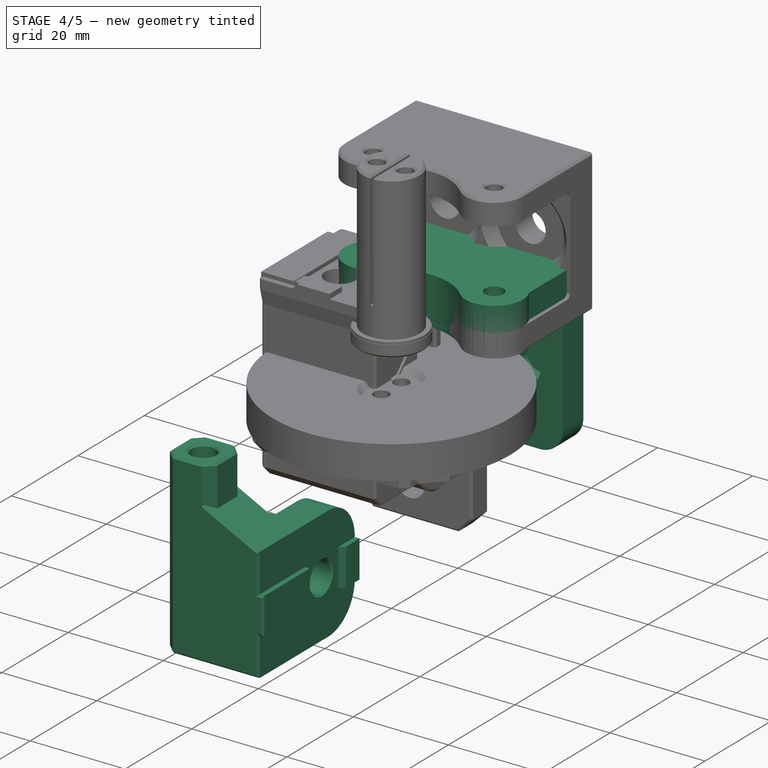
[diagram: stage 4 of 5 — iso view after this stage's code; geometry added in this stage tinted green]
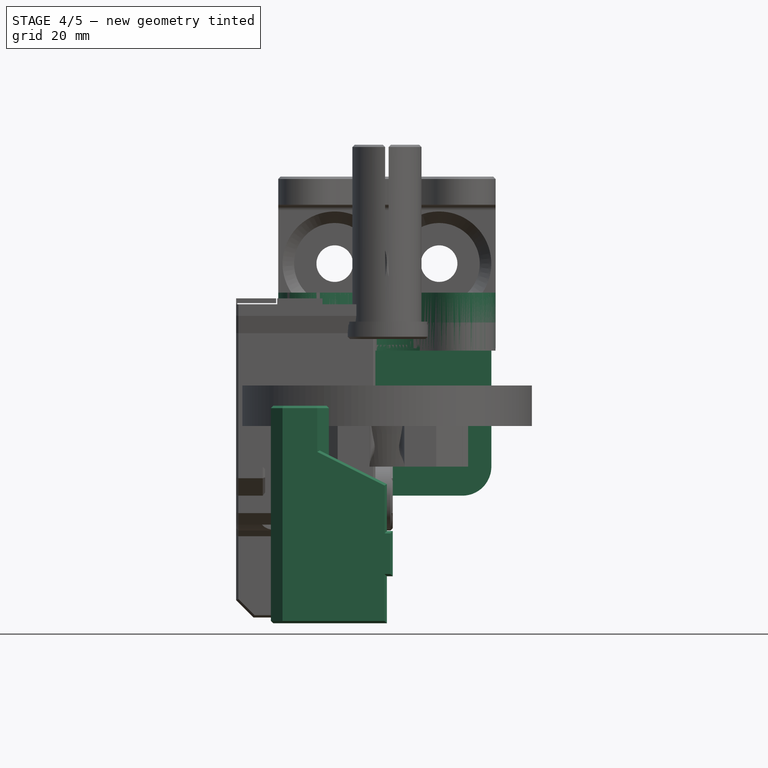
[diagram: stage 4 of 5 — front view after this stage's code; geometry added in this stage tinted green]
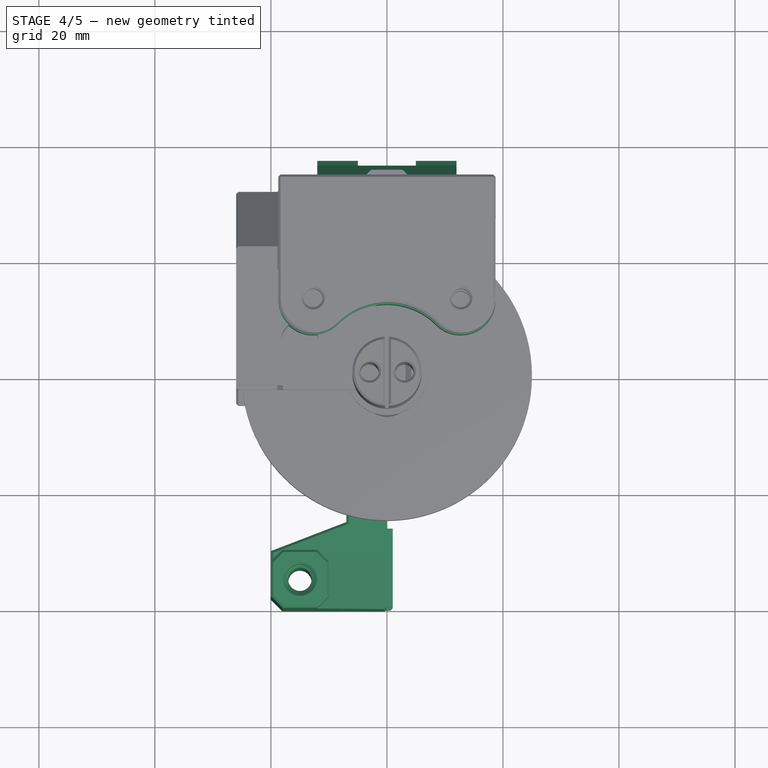
[diagram: stage 4 of 5 — top view after this stage's code; geometry added in this stage tinted green]
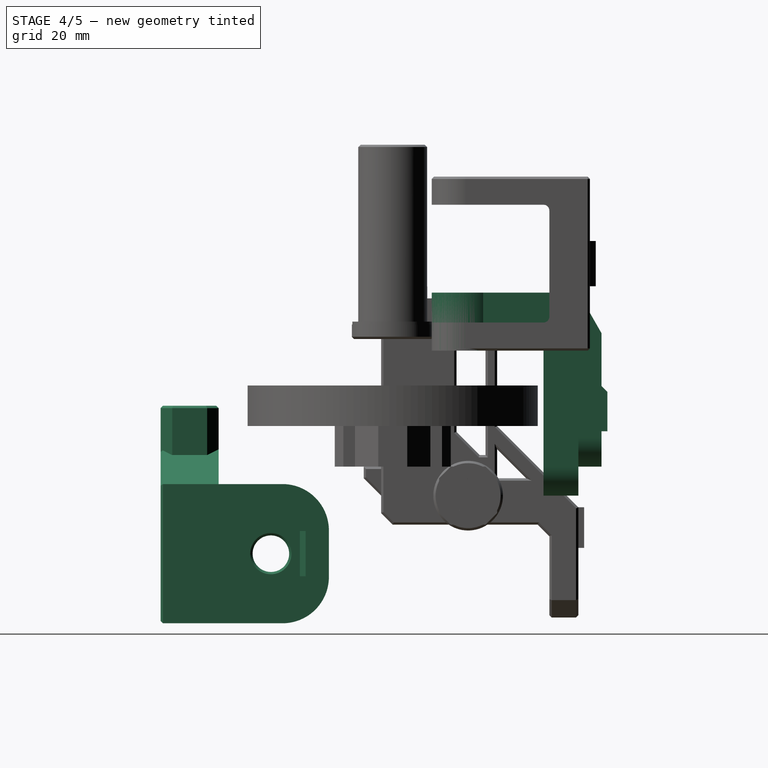
[diagram: stage 4 of 5 — right view after this stage's code; geometry added in this stage tinted green]
FEATURE [Part::Box] Box002  label="Cube002"
  AttacherType = Attacher::AttachEngine3D
  Height = 20
  Length = 24
  Placement = pos=(-12,31,0) rot=(0,0,1;0rad)
  Width = 5
FEATURE [Part::Box] Box003  label="Cube003"
  AttacherType = Attacher::AttachEngine3D
  Height = 7.8
  Length = 7
  Placement = pos=(-12,36,6.1) rot=(0,0,1;0rad)
  Width = 1
FEATURE [Part::Fillet] Fillet003002002
  Base = -> Box002
  Edges = 2 edges r=5: [Edge4,Edge8]
FEATURE [Part::Box] Box004  label="Cube004"
  AttacherType = Attacher::AttachEngine3D
  Height = 7.8
  Length = 7
  Placement = pos=(5,36,6.1) rot=(0,0,1;0rad)
  Width = 1
FEATURE [Part::MultiFuse] Fusion
  Shapes = -> [Box003,Box004]
FEATURE [Part::Chamfer] Chamfer015
  Base = -> Fusion
  Edges = 2 edges r=0.99: [Edge12,Edge24]
FEATURE [Part::Cylinder] Cylinder
  Angle = 360
  AttacherType = Attacher::AttachEngine3D
  Height = 10
  Placement = pos=(0,38,10) rot=(1,0,0;1.5708rad)
  Radius = 3.15
FEATURE [Part::Cut] Cut001002
  Base = -> Fillet003002002
  Tool = -> Cylinder
FEATURE [Part::Cylinder] Cylinder001
  Angle = 360
  AttacherType = Attacher::AttachEngine3D
  Height = 10
  Placement = pos=(-10,34,10) rot=(1,0,0;1.5708rad)
  Radius = 3.15
FEATURE [Part::Cylinder] Cylinder002
  Angle = 360
  AttacherType = Attacher::AttachEngine3D
  Height = 10
  Placement = pos=(10,34,10) rot=(1,0,0;1.5708rad)
  Radius = 3.15
FEATURE [Part::Chamfer] Chamfer025
  Base = -> Cut001002
  Edges = 2 edges r=0.4: [Edge10,Edge17]
FEATURE [Part::Box] Box011  label="Cube011"
  AttacherType = Attacher::AttachEngine3D
  Height = 10
  Length = 24
  Placement = pos=(-12,31,20) rot=(0,0,1;0rad)
  Width = 5
FEATURE [Part::Chamfer] Chamfer026003
  Base = -> Box011
  Edges = 1 edges: [Edge12 r1=7 r2=4]
FEATURE [Part::Box] Box008  label="Cube008"
  AttacherType = Attacher::AttachEngine3D
  Height = 36
  Length = 36
  Placement = pos=(-18,26,6) rot=(0,0,1;0rad)
  Width = 14
FEATURE [Part::Box] Box  label="Cube"
  AttacherType = Attacher::AttachEngine3D
  Height = 35
  Length = 36
  Placement = pos=(-18,26,-5) rot=(0,0,1;0rad)
  Width = 6
FEATURE [Part::Chamfer] Chamfer026006
  Base = -> Box
  Edges = 1 edges: [Edge12 r1=7 r2=4]
FEATURE [Part::Fillet] Fillet003002003
  Base = -> Chamfer026006
  Edges = 2 edges r=5: [Edge3,Edge15]
FEATURE [Part::MultiFuse] Fusion001002007
  Shapes = -> [Cylinder001,Cylinder002]
FEATURE [Part::Cut] Cut001003
  Base = -> Fillet003002003
  Tool = -> Fusion001002007
FEATURE [PartDesign::Plane] DatumPlane013
  AttachmentOffset = pos=(0,0,10) rot=(0,0,1;0rad)
  Length = 60.6771
  MapMode = 5
  Placement = pos=(0,0,10) rot=(0,0,1;0rad)
  ResizeMode = 0
  Support = -> [XY_Plane005]
  Width = 67.6771
FEATURE [Sketcher::SketchObject] Sketch031
  FullyConstrained = true
  MapMode = 5
  Placement = pos=(0,0,10) rot=(0,0,1;0rad)
  Support = -> [DatumPlane013]
  sketch-geometry (5):
    g0: ArcOfCircle CenterX=0 CenterY=0 CenterZ=0 NormalX=0 NormalY=0 NormalZ=1 AngleXU=0 Radius=18 StartAngle=0.785398 EndAngle=2.35619
    g1: LineSegment StartX=-12.7279 StartY=12.7279 StartZ=0 EndX=0 EndY=0 EndZ=0
    g2: LineSegment StartX=0 StartY=0 StartZ=0 EndX=12.7279 EndY=12.7279 EndZ=0
    g3: Circle CenterX=-12.7279 CenterY=12.7279 CenterZ=0 NormalX=0 NormalY=0 NormalZ=1 AngleXU=0 Radius=1.95
    g4: Circle CenterX=12.7279 CenterY=12.7279 CenterZ=0 NormalX=0 NormalY=0 NormalZ=1 AngleXU=0 Radius=1.95
  constraints (12):
    c: Coincident(g0,g-1)
    c: Coincident(g1,g0)
    c: Coincident(g1,g-1)
    c: Coincident(g2,g-1)
    c: Coincident(g2,g0)
    c: Radius(g0) = 18
    c: Angle(g-2,g1) = 0.785398
    c: Angle(g2,g-2) = 0.785398
    c: Coincident(g3,g0)
    c: Coincident(g4,g0)
    c: Radius(g3) = 1.95
    c: Radius(g4) = 1.95
FEATURE [PartDesign::Body] Body001001001002003  label="mounting-arm"
  Group = -> [Sketch030,Pad007,DatumPlane013,Sketch031]
  Origin = -> Origin005
  Placement = pos=(0,0,20) rot=(0,0,1;0rad)
  Tip = -> Pad007
FEATURE [Part::Feature] Body001001001002003003  label="mounting-arm003"
  Placement = pos=(0,0,20) rot=(0,0,1;0rad)
  shape: bbox 37.46 x 25.27 x 10 mm, 14 faces (baked)
FEATURE [Part::Feature] Body001001001002003004  label="mounting-arm004"
  Placement = pos=(0,0,20) rot=(0,0,1;0rad)
  shape: bbox 37.46 x 25.27 x 10 mm, 14 faces (baked)
FEATURE [Part::Cut] Cut
  Base = -> Body001001001002003003
  Tool = -> Box008
FEATURE [Part::Chamfer] Chamfer026010
  Base = -> Body001001001002003004
  Edges = 2 edges r=6: [Edge5,Edge21]
FEATURE [Part::Chamfer] Chamfer026011
  Base = -> Chamfer026010
  Edges = 10 edges r=0.4: [Edge3,Edge14,Edge16,Edge18,Edge19,Edge20,Edge21,Edge22,Edge23,Edge24]
FEATURE [Part::Chamfer] Chamfer026012
  Base = -> Chamfer026011
  Edges = 2 edges r=0.4: [Edge17,Edge18]
FEATURE [Part::MultiFuse] Fusion001002009  label="180-mounter"
  Shapes = -> [Chamfer026012,Chamfer026003,Chamfer025,Chamfer015]
FEATURE [Part::Feature] Body001001001002003005  label="U624ZZ-bearing"
  Placement = pos=(-8.9e-15,-60,40) rot=(0,1,0;1.5708rad)
  shape: bbox 15 x 15 x 7 mm, 6 faces (baked)
FEATURE [Sketcher::SketchObject] Sketch032
  FullyConstrained = true
  MapMode = 5
  Placement = pos=(0,0,0) rot=(1,0,0;1.5708rad)
  Support = -> [XZ_Plane006]
  sketch-geometry (10):
    g0: LineSegment StartX=-20 StartY=10.5 StartZ=0 EndX=-10 EndY=10.5 EndZ=0
    g1: LineSegment StartX=-10 StartY=10.5 StartZ=0 EndX=-10 EndY=2 EndZ=0
    g2: LineSegment StartX=-10 StartY=2 StartZ=0 EndX=0 EndY=-3 EndZ=0
    g3: LineSegment StartX=0 StartY=-3 StartZ=0 EndX=0 EndY=-11.1 EndZ=0
    g4: LineSegment StartX=0 StartY=-11.1 StartZ=0 EndX=1 EndY=-11.1 EndZ=0
    g5: LineSegment StartX=1 StartY=-11.1 StartZ=0 EndX=1 EndY=-18.9 EndZ=0
    g6: LineSegment StartX=1 StartY=-18.9 StartZ=0 EndX=1e-16 EndY=-18.9 EndZ=0
    g7: LineSegment StartX=1e-16 StartY=-18.9 StartZ=0 EndX=1e-16 EndY=-27 EndZ=0
    g8: LineSegment StartX=1e-16 StartY=-27 StartZ=0 EndX=-20 EndY=-27 EndZ=0
    g9: LineSegment StartX=-20 StartY=-27 StartZ=0 EndX=-20 EndY=10.5 EndZ=0
  constraints (30):
    c: Horizontal(g0)
    c: Coincident(g0,g1)
    c: Vertical(g1)
    c: Coincident(g1,g2)
    c: Coincident(g2,g3)
    c: Vertical(g3)
    c: Coincident(g3,g4)
    c: Horizontal(g4)
    c: Coincident(g4,g5)
    c: Vertical(g5)
    c: Coincident(g5,g6)
    c: Horizontal(g6)
    c: Coincident(g6,g7)
    c: Vertical(g7)
    c: Coincident(g7,g8)
    c: Horizontal(g8)
    c: Coincident(g8,g9)
    c: Coincident(g9,g0)
    c: Vertical(g9)
    c: DistanceY(g5,g5) = 7.8
    c: DistanceY(g4,g-1) = 11.1
    c: DistanceY(g2,g-1) = 3
    c: DistanceX(g1,g2) = 10
    c: DistanceX(g4,g4) = 1
    c: DistanceX(g6,g6) = 1
    c: DistanceY(g7,g-1) = 27
    c: DistanceX(g2,g-1) = 0
    c: DistanceY(g2,g1) = 5
    c: DistanceX(g0,g0) = 10
    c: DistanceY(g-1,g0) = 10.5
FEATURE [PartDesign::Pad] Pad008
  Direction = (1,1,1)
  Length = 40
  Length2 = 100
  Placement = pos=(0,0,0) rot=(1,0,0;1.5708rad)
  Profile = -> Sketch032
  Type = 0
FEATURE [PartDesign::Plane] DatumPlane014
  AttachmentOffset = pos=(0,0,-20) rot=(0,0,1;0rad)
  Length = 60
  MapMode = 5
  Placement = pos=(-20,4.4e-15,-4.4e-15) rot=(0.57735,0.57735,0.57735;2.0944rad)
  ResizeMode = 0
  Support = -> [YZ_Plane006]
  Width = 60
FEATURE [Sketcher::SketchObject] Sketch033
  FullyConstrained = true
  MapMode = 5
  Placement = pos=(-20,4.4e-15,-4.4e-15) rot=(0.57735,0.57735,0.57735;2.0944rad)
  Support = -> [DatumPlane014]
  sketch-geometry (4):
    g0: LineSegment StartX=-30 StartY=10.5 StartZ=0 EndX=0 EndY=10.5 EndZ=0
    g1: LineSegment StartX=-30 StartY=-3 StartZ=0 EndX=-30 EndY=10.5 EndZ=0
    g2: LineSegment StartX=0 StartY=10.5 StartZ=0 EndX=0 EndY=-3 EndZ=0
    g3: LineSegment StartX=0 StartY=-3 StartZ=0 EndX=-30 EndY=-3 EndZ=0
  constraints (12):
    c: Horizontal(g0)
    c: Coincident(g1,g0)
    c: Vertical(g1)
    c: DistanceX(g0,g0) = 30
    c: Coincident(g0,g2)
    c: Vertical(g2)
    c: DistanceX(g0,g-1) = 0
    c: DistanceY(g-1,g0) = 10.5
    c: Coincident(g3,g2)
    c: Coincident(g1,g3)
    c: DistanceY(g1,g-1) = 3
    c: Horizontal(g3)
FEATURE [PartDesign::Pocket] Pocket020
  BaseFeature = -> Pad008
  Length = 5
  Length2 = 100
  Placement = pos=(0,0,0) rot=(1,0,0;1.5708rad)
  Profile = -> Sketch033
  Reversed = true
  Type = 1
FEATURE [PartDesign::Plane] DatumPlane015
  AttachmentOffset = pos=(0,0,-27) rot=(0,0,1;0rad)
  Length = 60
  MapMode = 5
  Placement = pos=(0,0,-27) rot=(0,0,1;0rad)
  ResizeMode = 0
  Support = -> [XY_Plane006]
  Width = 60
FEATURE [Sketcher::SketchObject] Sketch034
  FullyConstrained = true
  MapMode = 5
  Placement = pos=(0,0,-27) rot=(0,0,1;0rad)
  Support = -> [DatumPlane015]
  sketch-geometry (4):
    g0: LineSegment StartX=-20 StartY=-30 StartZ=0 EndX=-7 EndY=-25 EndZ=0
    g1: LineSegment StartX=-7 StartY=-25 StartZ=0 EndX=-7 EndY=0 EndZ=0
    g2: LineSegment StartX=-7 StartY=0 StartZ=0 EndX=-20 EndY=0 EndZ=0
    g3: LineSegment StartX=-20 StartY=0 StartZ=0 EndX=-20 EndY=-30 EndZ=0
  constraints (12):
    c: Coincident(g0,g1)
    c: Vertical(g1)
    c: Coincident(g1,g2)
    c: Horizontal(g2)
    c: Coincident(g2,g3)
    c: Coincident(g3,g0)
    c: Vertical(g3)
    c: DistanceX(g1,g-1) = 7
    c: DistanceX(g2,g1) = 13
    c: DistanceY(g0,g0) = 5
    c: DistanceY(g0,g-1) = 30
    c: DistanceY(g-1,g2) = 0
FEATURE [PartDesign::Pocket] Pocket021
  BaseFeature = -> Pocket020
  Length = 5
  Length2 = 100
  Placement = pos=(0,0,0) rot=(1,0,0;1.5708rad)
  Profile = -> Sketch034
  Reversed = true
  Type = 1
FEATURE [PartDesign::Plane] DatumPlane016
  AttachmentOffset = pos=(0,0,-7) rot=(0,0,1;0rad)
  Length = 60
  MapMode = 5
  Placement = pos=(-7,1.6e-15,-1.6e-15) rot=(0.57735,0.57735,0.57735;2.0944rad)
  ResizeMode = 0
  Support = -> [YZ_Plane006]
  Width = 60
FEATURE [Sketcher::SketchObject] Sketch035
  FullyConstrained = true
  MapMode = 5
  Placement = pos=(-7,1.6e-15,-1.6e-15) rot=(0.57735,0.57735,0.57735;2.0944rad)
  Support = -> [DatumPlane016]
  sketch-geometry (1):
    g0: Circle CenterX=-21 CenterY=-15 CenterZ=0 NormalX=0 NormalY=0 NormalZ=1 AngleXU=0 Radius=8
  constraints (3):
    c: Radius(g0) = 8
    c: DistanceY(g0,g-1) = 15
    c: DistanceX(g0,g-1) = 21
FEATURE [PartDesign::Pocket] Pocket022
  BaseFeature = -> Pocket021
  Length = 8
  Length2 = 100
  Placement = pos=(0,0,0) rot=(1,0,0;1.5708rad)
  Profile = -> Sketch035
  Type = 1
FEATURE [Sketcher::SketchObject] Sketch036
  FullyConstrained = true
  MapMode = 5
  Placement = pos=(-7,1.6e-15,-1.6e-15) rot=(0.57735,0.57735,0.57735;2.0944rad)
  Support = -> [DatumPlane016]
  sketch-geometry (1):
    g0: Circle CenterX=-21 CenterY=-15 CenterZ=0 NormalX=0 NormalY=0 NormalZ=1 AngleXU=0 Radius=3.15
  constraints (3):
    c: Radius(g0) = 3.15
    c: DistanceX(g0,g-1) = 21
    c: DistanceY(g0,g-1) = 15
FEATURE [Sketcher::SketchObject] Sketch037
  FullyConstrained = true
  MapMode = 5
  Placement = pos=(-7,1.6e-15,-1.6e-15) rot=(0.57735,0.57735,0.57735;2.0944rad)
  Support = -> [DatumPlane016]
  sketch-geometry (4):
    g0: LineSegment StartX=-11 StartY=-3 StartZ=0 EndX=0 EndY=-3 EndZ=0
    g1: LineSegment StartX=0 StartY=-3 StartZ=0 EndX=0 EndY=-27 EndZ=0
    g2: LineSegment StartX=0 StartY=-27 StartZ=0 EndX=-11 EndY=-27 EndZ=0
    g3: LineSegment StartX=-11 StartY=-27 StartZ=0 EndX=-11 EndY=-3 EndZ=0
  constraints (12):
    c: Coincident(g0,g1)
    c: Coincident(g1,g2)
    c: Coincident(g2,g3)
    c: Coincident(g3,g0)
    c: Horizontal(g0)
    c: Horizontal(g2)
    c: Vertical(g1)
    c: Vertical(g3)
    c: DistanceX(g2,g2) = 11
    c: DistanceY(g3,g3) = 24
    c: DistanceY(g0,g-1) = 3
    c: DistanceX(g0,g-1) = 0
FEATURE [PartDesign::Pocket] Pocket023
  BaseFeature = -> Pocket022
  Length = 5
  Length2 = 100
  Placement = pos=(0,0,0) rot=(1,0,0;1.5708rad)
  Profile = -> Sketch036
  Reversed = true
  Type = 1
FEATURE [PartDesign::Pocket] Pocket024
  BaseFeature = -> Pocket023
  Length = 5
  Length2 = 100
  Placement = pos=(0,0,0) rot=(1,0,0;1.5708rad)
  Profile = -> Sketch037
  Reversed = true
  Type = 1
FEATURE [PartDesign::Fillet] Fillet003002004
  Base = -> Pocket024 [Edge37,Edge23]
  BaseFeature = -> Pocket024
  Placement = pos=(0,0,0) rot=(1,0,0;1.5708rad)
  Radius = 8
  SupportTransform = false
FEATURE [PartDesign::Plane] DatumPlane017
  AttachmentOffset = pos=(0,0,10.5) rot=(0,0,1;0rad)
  Length = 60
  MapMode = 5
  Placement = pos=(0,0,10.5) rot=(0,0,1;0rad)
  ResizeMode = 0
  Support = -> [XY_Plane006]
  Width = 60
FEATURE [Sketcher::SketchObject] Sketch038
  FullyConstrained = true
  MapMode = 5
  Placement = pos=(0,0,10.5) rot=(0,0,1;0rad)
  Support = -> [DatumPlane017]
  sketch-geometry (1):
    g0: Circle CenterX=-15 CenterY=-35 CenterZ=0 NormalX=0 NormalY=0 NormalZ=1 AngleXU=0 Radius=2
  constraints (3):
    c: DistanceX(g0,g-1) = 15
    c: DistanceY(g0,g-1) = 35
    c: Radius(g0) = 2
FEATURE [PartDesign::Pocket] Pocket025
  BaseFeature = -> Fillet003002004
  Length = 5
  Length2 = 100
  Placement = pos=(0,0,0) rot=(1,0,0;1.5708rad)
  Profile = -> Sketch038
  Type = 1
FEATURE [Sketcher::SketchObject] Sketch039
  FullyConstrained = true
  MapMode = 5
  Placement = pos=(0,0,10.5) rot=(0,0,1;0rad)
  Support = -> [DatumPlane017]
  sketch-geometry (1):
    g0: Circle CenterX=-15 CenterY=-35 CenterZ=0 NormalX=0 NormalY=0 NormalZ=1 AngleXU=0 Radius=2.55
  constraints (3):
    c: DistanceX(g0,g-1) = 15
    c: DistanceY(g0,g-1) = 35
    c: Radius(g0) = 2.55
FEATURE [PartDesign::Pocket] Pocket026
  BaseFeature = -> Pocket025
  Length = 6
  Length2 = 100
  Placement = pos=(0,0,0) rot=(1,0,0;1.5708rad)
  Profile = -> Sketch039
  Type = 0
FEATURE [PartDesign::Plane] DatumPlane018
  AttachmentOffset = pos=(0,0,1) rot=(0,0,1;0rad)
  Length = 60
  MapMode = 5
  Placement = pos=(1,-2e-16,2e-16) rot=(0.57735,0.57735,0.57735;2.0944rad)
  ResizeMode = 0
  Support = -> [YZ_Plane006]
  Width = 60
FEATURE [Sketcher::SketchObject] Sketch040
  FullyConstrained = true
  MapMode = 5
  Placement = pos=(1,-2e-16,2e-16) rot=(0.57735,0.57735,0.57735;2.0944rad)
  Support = -> [DatumPlane018]
  sketch-geometry (4):
    g0: LineSegment StartX=-26 StartY=-11 StartZ=0 EndX=-16 EndY=-11 EndZ=0
    g1: LineSegment StartX=-16 StartY=-11 StartZ=0 EndX=-16 EndY=-19 EndZ=0
    g2: LineSegment StartX=-16 StartY=-19 StartZ=0 EndX=-26 EndY=-19 EndZ=0
    g3: LineSegment StartX=-26 StartY=-19 StartZ=0 EndX=-26 EndY=-11 EndZ=0
  constraints (12):
    c: Coincident(g0,g1)
    c: Coincident(g1,g2)
    c: Coincident(g2,g3)
    c: Coincident(g3,g0)
    c: Horizontal(g0)
    c: Horizontal(g2)
    c: Vertical(g1)
    c: Vertical(g3)
    c: DistanceX(g0,g0) = 10
    c: DistanceY(g1,g1) = 8
    c: DistanceY(g0,g-1) = 11
    c: DistanceX(g0,g-1) = 16
FEATURE [PartDesign::Pocket] Pocket027
  BaseFeature = -> Pocket026
  Length = 1
  Length2 = 100
  Placement = pos=(0,0,0) rot=(1,0,0;1.5708rad)
  Profile = -> Sketch040
  Type = 0
FEATURE [PartDesign::Chamfer] Chamfer026013
  Angle = 45
  Base = -> Pocket027 [Edge43,Edge49,Edge19,Edge17]
  BaseFeature = -> Pocket027
  ChamferType = 0
  FlipDirection = false
  Placement = pos=(0,0,0) rot=(1,0,0;1.5708rad)
  Size = 2
  Size2 = 1
  SupportTransform = false
FEATURE [PartDesign::Chamfer] Chamfer026014
  Angle = 45
  Base = -> Chamfer026013 [Edge64,Edge65,Edge66,Edge67,Edge61,Edge21,Edge68,Edge26,Edge30,Edge34,Edge35,Edge36,Edge28,Edge7,Edge6,Edge4,Edge75,Edge90,Edge71,Edge43,Edge41,Edge24,Edge14,Edge8,Edge39,Edge40,Edge42,Edge44,Edge50,Edge49]
  BaseFeature = -> Chamfer026013
  ChamferType = 0
  FlipDirection = false
  Placement = pos=(0,0,0) rot=(1,0,0;1.5708rad)
  Size = 0.4
  Size2 = 1
  SupportTransform = false
FEATURE [PartDesign::Chamfer] Chamfer026015
  Angle = 45
  Base = -> Chamfer026014 [Edge119]
  BaseFeature = -> Chamfer026014
  ChamferType = 0
  FlipDirection = false
  Placement = pos=(0,0,0) rot=(1,0,0;1.5708rad)
  Size = 0.99
  Size2 = 1
  SupportTransform = false
FEATURE [PartDesign::Chamfer] Chamfer026016
  Angle = 45
  Base = -> Chamfer026015 [Edge152]
  BaseFeature = -> Chamfer026015
  ChamferType = 0
  FlipDirection = false
  Placement = pos=(0,0,0) rot=(1,0,0;1.5708rad)
  Size = 0.5
  Size2 = 1
  SupportTransform = false
FEATURE [PartDesign::Body] Body001001001002003006  label="top-pulley-arm"
  Group = -> [Sketch032,Pad008,DatumPlane014,Sketch033,Pocket020,DatumPlane015,Sketch034,Pocket021,DatumPlane016,Sketch035,Pocket022,Sketch036,Pocket023,Sketch037,Pocket024,Fillet003002004,DatumPlane017,Sketch038,Pocket025,Sketch039,Pocket026,DatumPlane018,Sketch040,Pocket027,Chamfer026013,Chamfer026014,Chamfer026015,Chamfer026016]
  Origin = -> Origin006
  Placement = pos=(10,-25,0) rot=(0,0,1;0rad)
  Tip = -> Chamfer026016
FEATURE [Sketcher::SketchObject] Sketch041
  FullyConstrained = true
  MapMode = 5
  Support = -> [XY_Plane007]
  sketch-geometry (2):
    g0: Circle CenterX=0 CenterY=0 CenterZ=0 NormalX=0 NormalY=0 NormalZ=1 AngleXU=0 Radius=2.2
    g1: Circle CenterX=0 CenterY=0 CenterZ=0 NormalX=0 NormalY=0 NormalZ=1 AngleXU=0 Radius=3.5
  constraints (4):
    c: Coincident(g0,g-1)
    c: Coincident(g1,g0)
    c: Radius(g0) = 2.2
    c: Radius(g1) = 3.5
FEATURE [PartDesign::Pad] Pad009
  Direction = (1,1,1)
  Length = 1
  Length2 = 100
  Profile = -> Sketch041
  Type = 0
FEATURE [Part::Cut] Cut001005
  Base = -> Cut001004
  Tool = -> Fusion001002011
FEATURE [Part::Fillet] Fillet003002005
  Base = -> Cut001005
  Edges = 3 edges r=3: [Edge38,Edge39,Edge66]
FEATURE [Part::Chamfer] Chamfer026017
  Base = -> Fillet003002005
  Edges = 2 edges r=1: [Edge3,Edge26]
FEATURE [Part::Chamfer] Chamfer026018  label="wire-mounter"
  Base = -> Chamfer026017
  Edges = 1 edges r=0.4: [Edge121]
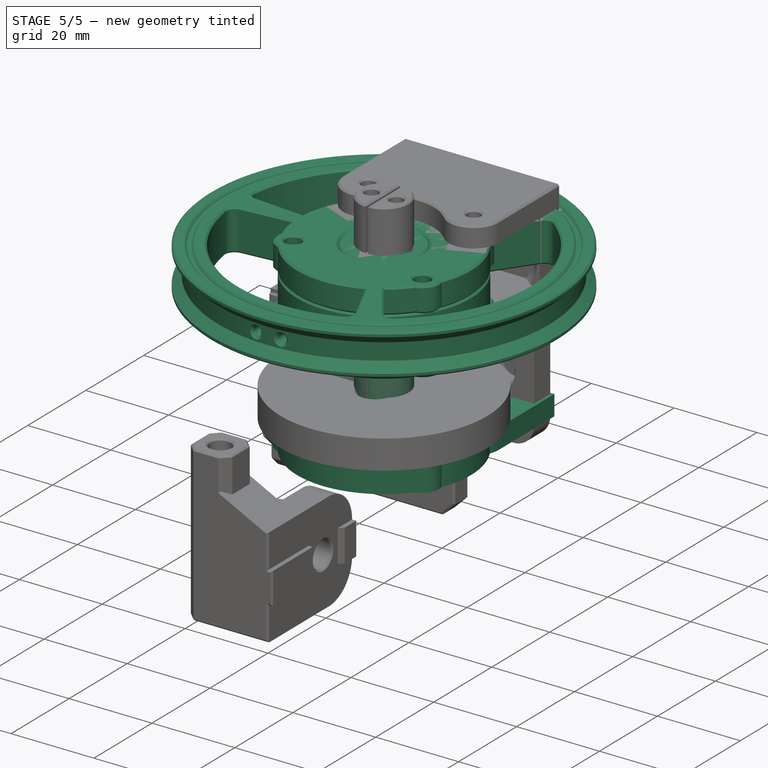
[diagram: stage 5 of 5 — iso view after this stage's code; geometry added in this stage tinted green]
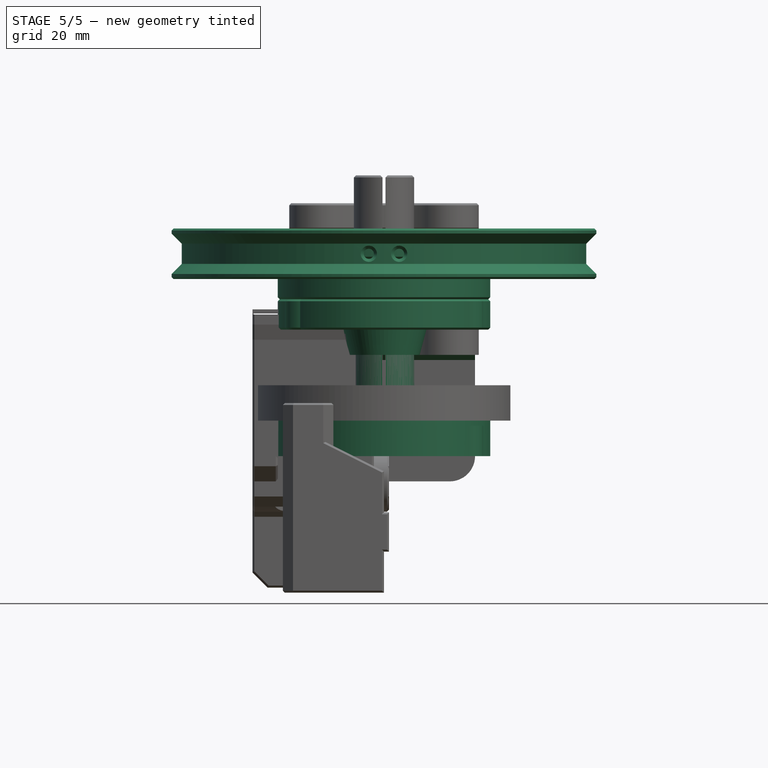
[diagram: stage 5 of 5 — front view after this stage's code; geometry added in this stage tinted green]
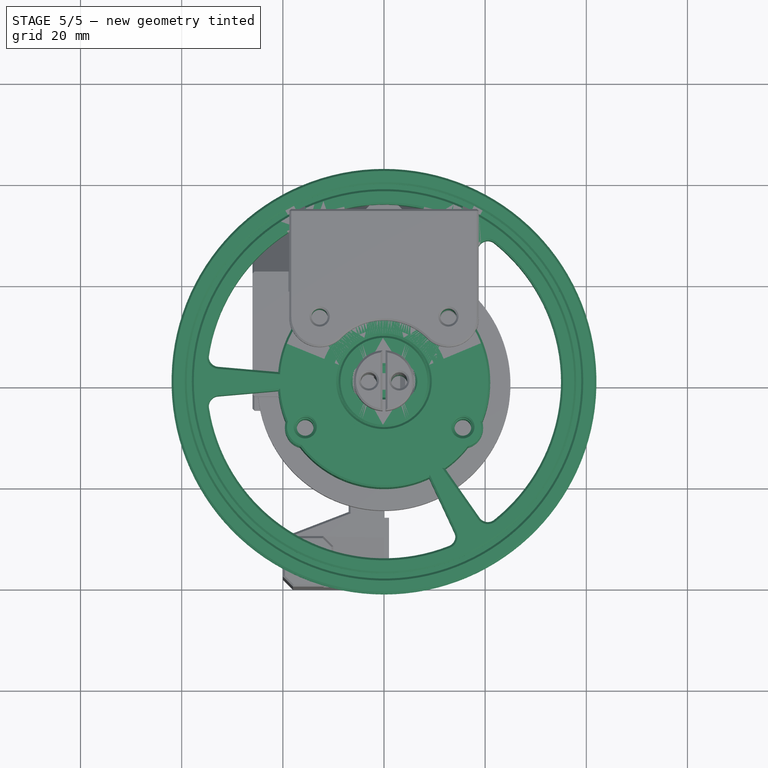
[diagram: stage 5 of 5 — top view after this stage's code; geometry added in this stage tinted green]
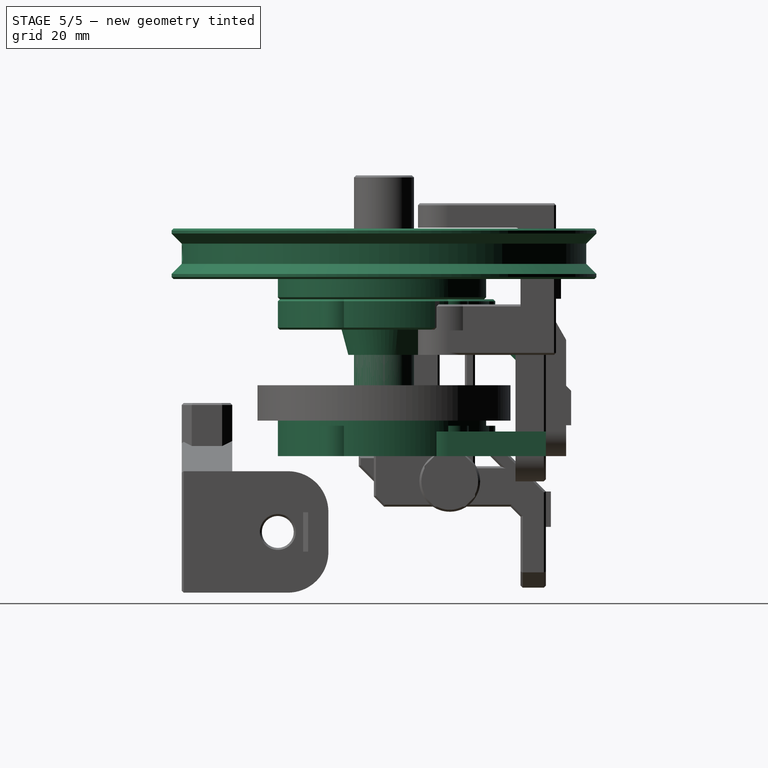
[diagram: stage 5 of 5 — right view after this stage's code; geometry added in this stage tinted green]
FEATURE [Part::Feature] Chamfer001  label="bearing-6701ZZ"
  shape: bbox 18 x 18 x 4 mm, 20 faces (baked)
FEATURE [Spreadsheet::Sheet] Spreadsheet  label="params"
  cells = A1=Bearing outer slot; B1(bearing_outer_r)=9.050000000000001; A2=Bearing inner slot; B2(bearing_inner_r)=5.95; A3=Housing inner; B3(housing_inner_r)=15; A4=Housing outer; B4(housing_outer_r)=21; A5=Housing height; B5(housing_h)=14; A6=Housing axis slot; B6(housing_axis_r)=8.050000000000001; A7=Prulley radius; B7(pulley_radius)=40
FEATURE [Sketcher::SketchObject] Sketch
  FullyConstrained = false
  MapMode = 5
  Support = -> [XY_Plane]
  expr: Constraints[0] = <<params>>.housing_outer_r
  sketch-geometry (1):
    g0: Circle CenterX=0 CenterY=0 CenterZ=0 NormalX=0 NormalY=0 NormalZ=1 AngleXU=0 Radius=21
  constraints (1):
    c: Radius(g0) = 21
FEATURE [PartDesign::Pad] Pad
  Direction = (1,1,1)
  Length = 14
  Length2 = 100
  Profile = -> Sketch
  Type = 0
  expr: Length = <<params>>.housing_h
FEATURE [PartDesign::Plane] DatumPlane
  Length = 60
  MapMode = 5
  ResizeMode = 0
  Support = -> [XY_Plane]
  Width = 60
FEATURE [Sketcher::SketchObject] Sketch001
  FullyConstrained = true
  MapMode = 5
  Support = -> [DatumPlane]
  expr: Constraints[1] = <<params>>.bearing_outer_r
  sketch-geometry (1):
    g0: Circle CenterX=0 CenterY=0 CenterZ=0 NormalX=0 NormalY=0 NormalZ=1 AngleXU=0 Radius=9.05
  constraints (2):
    c: Coincident(g0,g-1)
    c: Radius(g0) = 9.05
FEATURE [PartDesign::Pocket] Pocket
  BaseFeature = -> Pad
  Length = 4
  Length2 = 100
  Profile = -> Sketch001
  Reversed = true
  Type = 0
FEATURE [PartDesign::Plane] DatumPlane001
  Length = 60
  MapMode = 5
  ResizeMode = 0
  Support = -> [XY_Plane]
  Width = 60
FEATURE [Sketcher::SketchObject] Sketch002
  FullyConstrained = true
  MapMode = 5
  Support = -> [DatumPlane001]
  expr: Constraints[1] = <<params>>.housing_axis_r
  sketch-geometry (1):
    g0: Circle CenterX=0 CenterY=0 CenterZ=0 NormalX=0 NormalY=0 NormalZ=1 AngleXU=0 Radius=8.05
  constraints (2):
    c: Coincident(g0,g-1)
    c: Radius(g0) = 8.05
FEATURE [PartDesign::Pocket] Pocket001
  BaseFeature = -> Pocket
  Length = 5
  Length2 = 100
  Profile = -> Sketch002
  Reversed = true
  Type = 1
FEATURE [PartDesign::Plane] DatumPlane002
  AttachmentOffset = pos=(0,0,6) rot=(0,0,1;0rad)
  Length = 60
  MapMode = 5
  Placement = pos=(0,0,6) rot=(0,0,1;0rad)
  ResizeMode = 0
  Support = -> [XY_Plane]
  Width = 60
FEATURE [Sketcher::SketchObject] Sketch003
  FullyConstrained = true
  MapMode = 5
  Placement = pos=(0,0,6) rot=(0,0,1;0rad)
  Support = -> [DatumPlane002]
  expr: Constraints[1] = <<params>>.housing_inner_r
  sketch-geometry (1):
    g0: Circle CenterX=0 CenterY=0 CenterZ=0 NormalX=0 NormalY=0 NormalZ=1 AngleXU=0 Radius=15
  constraints (2):
    c: Coincident(g0,g-1)
    c: Radius(g0) = 15
FEATURE [PartDesign::Pocket] Pocket002
  BaseFeature = -> Pocket001
  Length = 5
  Length2 = 100
  Profile = -> Sketch003
  Reversed = true
  Type = 1
FEATURE [PartDesign::Plane] DatumPlane003
  AttachmentOffset = pos=(0,0,14) rot=(0,0,1;0rad)
  Length = 60
  MapMode = 5
  Placement = pos=(0,0,14) rot=(0,0,1;0rad)
  ResizeMode = 0
  Support = -> [XY_Plane]
  Width = 60
FEATURE [Sketcher::SketchObject] Sketch004
  FullyConstrained = true
  MapMode = 5
  Placement = pos=(0,0,14) rot=(0,0,1;0rad)
  Support = -> [DatumPlane003]
  expr: Constraints[2] = <<params>>.housing_inner_r
  sketch-geometry (4):
    g0: LineSegment StartX=0 StartY=0 StartZ=0 EndX=-10.6066 EndY=10.6066 EndZ=0
    g1: LineSegment StartX=-10.6066 StartY=10.6066 StartZ=0 EndX=0 EndY=10.6066 EndZ=0
    g2: LineSegment StartX=0 StartY=10.6066 StartZ=0 EndX=0 EndY=21.2132 EndZ=0
    g3: LineSegment StartX=0 StartY=21.2132 StartZ=0 EndX=-10.6066 EndY=10.6066 EndZ=0
  constraints (11):
    c: Coincident(g0,g-1)
    c: Angle(g-2,g0) = 0.785398
    c: Distance(g0) = 15
    c: PointOnObject(g1,g-2)
    c: Horizontal(g1)
    c: Coincident(g2,g1)
    c: PointOnObject(g2,g-2)
    c: Coincident(g3,g1)
    c: Angle(g1,g3) = 0.785398
    c: Coincident(g1,g0)
    c: Coincident(g2,g3)
FEATURE [PartDesign::Pocket] Pocket003
  BaseFeature = -> Pocket002
  Length = 8
  Length2 = 100
  Profile = -> Sketch004
  Type = 0
FEATURE [Sketcher::SketchObject] Sketch005
  FullyConstrained = true
  MapMode = 5
  Placement = pos=(0,0,14) rot=(0,0,1;0rad)
  Support = -> [DatumPlane003]
  expr: Constraints[2] = <<params>>.housing_outer_r - 3
  sketch-geometry (1):
    g0: Circle CenterX=0 CenterY=18 CenterZ=0 NormalX=0 NormalY=0 NormalZ=1 AngleXU=0 Radius=3.5
  constraints (3):
    c: PointOnObject(g0,g-2)
    c: Radius(g0) = 3.5
    c: DistanceY(g-1,g0) = 18
FEATURE [PartDesign::Pocket] Pocket004
  BaseFeature = -> Pocket003
  Length = 8
  Length2 = 100
  Profile = -> Sketch005
  Type = 0
FEATURE [PartDesign::Fillet] Fillet
  Base = -> Pocket004 [Edge3,Edge7,Edge32]
  BaseFeature = -> Pocket004
  Radius = 2
  SupportTransform = false
FEATURE [Sketcher::SketchObject] Sketch006
  FullyConstrained = true
  MapMode = 5
  Support = -> [DatumPlane]
  expr: Constraints[2] = <<params>>.housing_outer_r - 3
  sketch-geometry (10):
    g0: Circle CenterX=0 CenterY=18 CenterZ=0 NormalX=0 NormalY=0 NormalZ=1 AngleXU=0 Radius=4
    g1: Circle CenterX=0 CenterY=0 CenterZ=0 NormalX=0 NormalY=0 NormalZ=1 AngleXU=0 Radius=18
    g2: LineSegment StartX=0 StartY=0 StartZ=0 EndX=-12.7279 EndY=12.7279 EndZ=0
    g3: LineSegment StartX=0 StartY=0 StartZ=0 EndX=12.7279 EndY=12.7279 EndZ=0
    g4: Circle CenterX=-12.7279 CenterY=12.7279 CenterZ=0 NormalX=0 NormalY=0 NormalZ=1 AngleXU=0 Radius=4
    g5: Circle CenterX=12.7279 CenterY=12.7279 CenterZ=0 NormalX=0 NormalY=0 NormalZ=1 AngleXU=0 Radius=4
    g6: LineSegment StartX=0 StartY=0 StartZ=0 EndX=-15.5885 EndY=-9 EndZ=0
    g7: LineSegment StartX=0 StartY=0 StartZ=0 EndX=15.5885 EndY=-9 EndZ=0
    g8: Circle CenterX=-15.5885 CenterY=-9 CenterZ=0 NormalX=0 NormalY=0 NormalZ=1 AngleXU=0 Radius=4
    g9: Circle CenterX=15.5885 CenterY=-9 CenterZ=0 NormalX=0 NormalY=0 NormalZ=1 AngleXU=0 Radius=4
  constraints (25):
    c: PointOnObject(g0,g-2)
    c: Radius(g0) = 4
    c: DistanceY(g-1,g0) = 18
    c: Coincident(g1,g-1)
    c: Radius(g1) = 18
    c: Coincident(g2,g-1)
    c: PointOnObject(g2,g1)
    c: Coincident(g3,g-1)
    c: PointOnObject(g3,g1)
    c: Angle(g-2,g2) = 0.785398
    c: Angle(g3,g-2) = 0.785398
    c: Coincident(g4,g2)
    c: Coincident(g5,g3)
    c: Radius(g5) = 4
    c: Radius(g4) = 4
    c: Coincident(g6,g-1)
    c: PointOnObject(g6,g1)
    c: Coincident(g7,g-1)
    c: PointOnObject(g7,g1)
    c: Angle(g-2,g6) = 2.0944
    c: Angle(g7,g-2) = 2.0944
    c: Coincident(g8,g6)
    c: Coincident(g9,g7)
    c: Radius(g8) = 4
    c: Radius(g9) = 4
FEATURE [PartDesign::Pad] Pad001
  BaseFeature = -> Fillet
  Direction = (1,1,1)
  Length = 6
  Length2 = 100
  Profile = -> Sketch006
  Type = 0
FEATURE [Sketcher::SketchObject] Sketch007
  FullyConstrained = true
  MapMode = 5
  Support = -> [DatumPlane]
  sketch-geometry (10):
    g0: Circle CenterX=0 CenterY=0 CenterZ=0 NormalX=0 NormalY=0 NormalZ=1 AngleXU=0 Radius=18
    g1: LineSegment StartX=0 StartY=0 StartZ=0 EndX=-12.7279 EndY=12.7279 EndZ=0
    g2: LineSegment StartX=0 StartY=0 StartZ=0 EndX=12.7279 EndY=12.7279 EndZ=0
    g3: Circle CenterX=-12.7279 CenterY=12.7279 CenterZ=0 NormalX=0 NormalY=0 NormalZ=1 AngleXU=0 Radius=1.65
    g4: Circle CenterX=12.7279 CenterY=12.7279 CenterZ=0 NormalX=0 NormalY=0 NormalZ=1 AngleXU=0 Radius=1.65
    g5: Circle CenterX=0 CenterY=18 CenterZ=0 NormalX=0 NormalY=0 NormalZ=1 AngleXU=0 Radius=1.65
    g6: LineSegment StartX=0 StartY=0 StartZ=0 EndX=-15.5885 EndY=-9 EndZ=0
    g7: LineSegment StartX=0 StartY=0 StartZ=0 EndX=15.5885 EndY=-9 EndZ=0
    g8: Circle CenterX=-15.5885 CenterY=-9 CenterZ=0 NormalX=0 NormalY=0 NormalZ=1 AngleXU=0 Radius=1.65
    g9: Circle CenterX=15.5885 CenterY=-9 CenterZ=0 NormalX=0 NormalY=0 NormalZ=1 AngleXU=0 Radius=1.65
  constraints (25):
    c: Coincident(g0,g-1)
    c: Radius(g0) = 18
    c: Coincident(g1,g-1)
    c: PointOnObject(g1,g0)
    c: Coincident(g2,g-1)
    c: PointOnObject(g2,g0)
    c: Angle(g2,g-2) = 0.785398
    c: Angle(g-2,g1) = 0.785398
    c: Coincident(g3,g1)
    c: Coincident(g4,g2)
    c: PointOnObject(g5,g-2)
    c: Radius(g3) = 1.65
    c: Radius(g4) = 1.65
    c: DistanceY(g-1,g5) = 18
    c: Radius(g5) = 1.65
    c: Coincident(g6,g-1)
    c: PointOnObject(g6,g0)
    c: Coincident(g7,g-1)
    c: PointOnObject(g7,g0)
    c: Angle(g7,g-2) = 2.0944
    c: Angle(g-2,g6) = 2.0944
    c: Coincident(g8,g6)
    c: Coincident(g9,g7)
    c: Radius(g8) = 1.65
    c: Radius(g9) = 1.65
FEATURE [PartDesign::Pocket] Pocket005
  BaseFeature = -> Pad001
  Length = 5
  Length2 = 100
  Profile = -> Sketch007
  Reversed = true
  Type = 1
FEATURE [Part::Feature] Chamfer002  label="bearing-6701ZZ001"
  Placement = pos=(0,0,16) rot=(0,0,1;0rad)
  shape: bbox 18 x 18 x 4 mm, 20 faces (baked)
FEATURE [Sketcher::SketchObject] Sketch009
  FullyConstrained = true
  MapMode = 5
  Support = -> [XY_Plane001]
  expr: Constraints[1] = <<params>>.housing_outer_r
  sketch-geometry (1):
    g0: Circle CenterX=0 CenterY=0 CenterZ=0 NormalX=0 NormalY=0 NormalZ=1 AngleXU=0 Radius=21
  constraints (2):
    c: Coincident(g0,g-1)
    c: Radius(g0) = 21
FEATURE [PartDesign::Pad] Pad002
  Direction = (1,1,1)
  Length = 6
  Length2 = 100
  Profile = -> Sketch009
  Type = 0
FEATURE [PartDesign::Plane] DatumPlane004
  AttachmentOffset = pos=(0,0,6) rot=(0,0,1;0rad)
  Length = 60
  MapMode = 5
  Placement = pos=(0,0,6) rot=(0,0,1;0rad)
  ResizeMode = 0
  Support = -> [XY_Plane001]
  Width = 60
FEATURE [Sketcher::SketchObject] Sketch010
  FullyConstrained = true
  MapMode = 5
  Placement = pos=(0,0,6) rot=(0,0,1;0rad)
  Support = -> [DatumPlane004]
  sketch-geometry (11):
    g0: Circle CenterX=0 CenterY=0 CenterZ=0 NormalX=0 NormalY=0 NormalZ=1 AngleXU=0 Radius=18
    g1: LineSegment StartX=0 StartY=0 StartZ=0 EndX=-12.7279 EndY=12.7279 EndZ=0
    g2: LineSegment StartX=0 StartY=0 StartZ=0 EndX=0 EndY=18 EndZ=0
    g3: LineSegment StartX=0 StartY=0 StartZ=0 EndX=12.7279 EndY=12.7279 EndZ=0
    g4: LineSegment StartX=0 StartY=0 StartZ=0 EndX=-15.5885 EndY=-9 EndZ=0
    g5: LineSegment StartX=0 StartY=0 StartZ=0 EndX=15.5885 EndY=-9 EndZ=0
    g6: Circle CenterX=-12.7279 CenterY=12.7279 CenterZ=0 NormalX=0 NormalY=0 NormalZ=1 AngleXU=0 Radius=4
    g7: Circle CenterX=0 CenterY=18 CenterZ=0 NormalX=0 NormalY=0 NormalZ=1 AngleXU=0 Radius=4
    g8: Circle CenterX=12.7279 CenterY=12.7279 CenterZ=0 NormalX=0 NormalY=0 NormalZ=1 AngleXU=0 Radius=4
    g9: Circle CenterX=15.5885 CenterY=-9 CenterZ=0 NormalX=0 NormalY=0 NormalZ=1 AngleXU=0 Radius=4
    g10: Circle CenterX=-15.5885 CenterY=-9 CenterZ=0 NormalX=0 NormalY=0 NormalZ=1 AngleXU=0 Radius=4
  constraints (27):
    c: Coincident(g0,g-1)
    c: Radius(g0) = 18
    c: Coincident(g1,g-1)
    c: PointOnObject(g1,g0)
    c: Coincident(g2,g-1)
    c: PointOnObject(g2,g0)
    c: Coincident(g3,g-1)
    c: PointOnObject(g3,g0)
    c: Coincident(g4,g-1)
    c: PointOnObject(g4,g0)
    c: Coincident(g5,g-1)
    c: PointOnObject(g5,g0)
    c: Vertical(g2)
    c: Angle(g2,g1) = 0.785398
    c: Angle(g3,g2) = 0.785398
    c: Angle(g2,g4) = 2.0944
    c: Angle(g5,g2) = 2.0944
    c: Coincident(g6,g1)
    c: Coincident(g7,g2)
    c: Coincident(g8,g3)
    c: Coincident(g9,g5)
    c: Coincident(g10,g4)
    c: Radius(g6) = 4
    c: Radius(g7) = 4
    c: Radius(g8) = 4
    c: Radius(g10) = 4
    c: Radius(g9) = 4
FEATURE [PartDesign::Pad] Pad003
  BaseFeature = -> Pad002
  Direction = (1,1,1)
  Length = 6
  Length2 = 100
  Profile = -> Sketch010
  Reversed = true
  Type = 0
FEATURE [Sketcher::SketchObject] Sketch011
  FullyConstrained = true
  MapMode = 5
  Placement = pos=(0,0,6) rot=(0,0,1;0rad)
  Support = -> [DatumPlane004]
  sketch-geometry (11):
    g0: Circle CenterX=0 CenterY=0 CenterZ=0 NormalX=0 NormalY=0 NormalZ=1 AngleXU=0 Radius=18
    g1: LineSegment StartX=0 StartY=0 StartZ=0 EndX=-12.7279 EndY=12.7279 EndZ=0
    g2: LineSegment StartX=0 StartY=0 StartZ=0 EndX=0 EndY=18 EndZ=0
    g3: LineSegment StartX=0 StartY=0 StartZ=0 EndX=12.7279 EndY=12.7279 EndZ=0
    g4: LineSegment StartX=0 StartY=0 StartZ=0 EndX=-15.5885 EndY=-9 EndZ=0
    g5: LineSegment StartX=0 StartY=0 StartZ=0 EndX=15.5885 EndY=-9 EndZ=0
    g6: Circle CenterX=-12.7279 CenterY=12.7279 CenterZ=0 NormalX=0 NormalY=0 NormalZ=1 AngleXU=0 Radius=1.65
    g7: Circle CenterX=0 CenterY=18 CenterZ=0 NormalX=0 NormalY=0 NormalZ=1 AngleXU=0 Radius=1.9
    g8: Circle CenterX=12.7279 CenterY=12.7279 CenterZ=0 NormalX=0 NormalY=0 NormalZ=1 AngleXU=0 Radius=1.65
    g9: Circle CenterX=-15.5885 CenterY=-9 CenterZ=0 NormalX=0 NormalY=0 NormalZ=1 AngleXU=0 Radius=1.9
    g10: Circle CenterX=15.5885 CenterY=-9 CenterZ=0 NormalX=0 NormalY=0 NormalZ=1 AngleXU=0 Radius=1.9
  constraints (27):
    c: Coincident(g0,g-1)
    c: Radius(g0) = 18
    c: Coincident(g1,g-1)
    c: PointOnObject(g1,g0)
    c: Coincident(g2,g-1)
    c: PointOnObject(g2,g0)
    c: Coincident(g3,g-1)
    c: PointOnObject(g3,g0)
    c: Coincident(g4,g-1)
    c: PointOnObject(g4,g0)
    c: Coincident(g5,g-1)
    c: PointOnObject(g5,g0)
    c: Vertical(g2)
    c: Angle(g2,g1) = 0.785398
    c: Angle(g3,g2) = 0.785398
    c: Angle(g2,g4) = 2.0944
    c: Angle(g5,g2) = 2.0944
    c: Coincident(g6,g1)
    c: Coincident(g7,g2)
    c: Coincident(g8,g3)
    c: Coincident(g9,g4)
    c: Coincident(g10,g5)
    c: Radius(g6) = 1.65
    c: Radius(g9) = 1.9
    c: Radius(g10) = 1.9
    c: Radius(g8) = 1.65
    c: Radius(g7) = 1.9
FEATURE [PartDesign::Pocket] Pocket007
  BaseFeature = -> Pad003
  Length = 5
  Length2 = 100
  Profile = -> Sketch011
  Type = 1
FEATURE [Sketcher::SketchObject] Sketch012
  FullyConstrained = true
  MapMode = 5
  Placement = pos=(0,0,6) rot=(0,0,1;0rad)
  Support = -> [DatumPlane004]
  expr: Constraints[1] = <<params>>.bearing_outer_r
  sketch-geometry (1):
    g0: Circle CenterX=0 CenterY=0 CenterZ=0 NormalX=0 NormalY=0 NormalZ=1 AngleXU=0 Radius=9.05
  constraints (2):
    c: Coincident(g0,g-1)
    c: Radius(g0) = 9.05
FEATURE [PartDesign::Pocket] Pocket008
  BaseFeature = -> Pocket007
  Length = 4
  Length2 = 100
  Profile = -> Sketch012
  Type = 0
FEATURE [Sketcher::SketchObject] Sketch013
  FullyConstrained = true
  MapMode = 5
  Placement = pos=(0,0,6) rot=(0,0,1;0rad)
  Support = -> [DatumPlane004]
  expr: Constraints[1] = <<params>>.bearing_outer_r - 1
  sketch-geometry (1):
    g0: Circle CenterX=0 CenterY=0 CenterZ=0 NormalX=0 NormalY=0 NormalZ=1 AngleXU=0 Radius=8.05
  constraints (2):
    c: Coincident(g0,g-1)
    c: Radius(g0) = 8.05
FEATURE [PartDesign::Pocket] Pocket009
  BaseFeature = -> Pocket008
  Length = 5
  Length2 = 100
  Profile = -> Sketch013
  Type = 1
FEATURE [PartDesign::Body] Body001  label="cover"
  Group = -> [Sketch009,Pad002,DatumPlane004,Sketch010,Pad003,Sketch011,Pocket007,Sketch012,Pocket008,Sketch013,Pocket009]
  Origin = -> Origin001
  Placement = pos=(0,0,14) rot=(0,0,1;0rad)
  Tip = -> Pocket009
FEATURE [Sketcher::SketchObject] Sketch014
  FullyConstrained = true
  MapMode = 5
  Support = -> [XY_Plane003]
  expr: Constraints[1] = <<params>>.bearing_outer_r - 2
  sketch-geometry (1):
    g0: Circle CenterX=0 CenterY=0 CenterZ=0 NormalX=0 NormalY=0 NormalZ=1 AngleXU=0 Radius=7.05
  constraints (2):
    c: Coincident(g0,g-1)
    c: Radius(g0) = 7.05
FEATURE [PartDesign::Pad] Pad004
  Direction = (1,1,1)
  Length = 2.5
  Length2 = 100
  Profile = -> Sketch014
  Type = 0
FEATURE [PartDesign::Plane] DatumPlane005
  AttachmentOffset = pos=(0,0,2.5) rot=(0,0,1;0rad)
  Length = 60
  MapMode = 5
  Placement = pos=(0,0,2.5) rot=(0,0,1;0rad)
  ResizeMode = 0
  Support = -> [XY_Plane003]
  Width = 60
FEATURE [Sketcher::SketchObject] Sketch015
  FullyConstrained = true
  MapMode = 5
  Placement = pos=(0,0,2.5) rot=(0,0,1;0rad)
  Support = -> [DatumPlane005]
  expr: Constraints[1] = <<params>>.bearing_inner_r + 1
  sketch-geometry (1):
    g0: Circle CenterX=0 CenterY=0 CenterZ=0 NormalX=0 NormalY=0 NormalZ=1 AngleXU=0 Radius=6.95
  constraints (2):
    c: Coincident(g0,g-1)
    c: Radius(g0) = 6.95
FEATURE [PartDesign::Pad] Pad005
  BaseFeature = -> Pad004
  Direction = (1,1,1)
  Length = 0.5
  Length2 = 100
  Profile = -> Sketch015
  Type = 0
FEATURE [PartDesign::Plane] DatumPlane006
  AttachmentOffset = pos=(0,0,3) rot=(0,0,1;0rad)
  Length = 60
  MapMode = 5
  Placement = pos=(0,0,3) rot=(0,0,1;0rad)
  ResizeMode = 0
  Support = -> [XY_Plane003]
  Width = 60
FEATURE [Sketcher::SketchObject] Sketch016
  FullyConstrained = true
  MapMode = 5
  Placement = pos=(0,0,3) rot=(0,0,1;0rad)
  Support = -> [DatumPlane006]
  expr: Constraints[1] = <<params>>.bearing_inner_r
  sketch-geometry (1):
    g0: Circle CenterX=0 CenterY=0 CenterZ=0 NormalX=0 NormalY=0 NormalZ=1 AngleXU=0 Radius=5.95
  constraints (2):
    c: Coincident(g0,g-1)
    c: Radius(g0) = 5.95
FEATURE [PartDesign::Pad] Pad006
  BaseFeature = -> Pad005
  Direction = (1,1,1)
  Length = 40
  Length2 = 100
  Profile = -> Sketch016
  Type = 0
FEATURE [PartDesign::Plane] DatumPlane007
  AttachmentOffset = pos=(0,0,23) rot=(0,0,1;0rad)
  Length = 60
  MapMode = 5
  Placement = pos=(0,0,23) rot=(0,0,1;0rad)
  ResizeMode = 0
  Support = -> [XY_Plane003]
  Width = 60
FEATURE [PartDesign::Plane] DatumPlane008
  Length = 60
  MapMode = 5
  ResizeMode = 0
  Support = -> [XY_Plane003]
  Width = 60
FEATURE [Sketcher::SketchObject] Sketch018
  FullyConstrained = true
  MapMode = 5
  Support = -> [DatumPlane008]
  sketch-geometry (2):
    g0: Circle CenterX=-3 CenterY=0 CenterZ=0 NormalX=0 NormalY=0 NormalZ=1 AngleXU=0 Radius=1.9
    g1: Circle CenterX=3 CenterY=0 CenterZ=0 NormalX=0 NormalY=0 NormalZ=1 AngleXU=0 Radius=1.9
  constraints (6):
    c: PointOnObject(g0,g-1)
    c: PointOnObject(g1,g-1)
    c: Radius(g0) = 1.9
    c: Radius(g1) = 1.9
    c: DistanceX(g0,g-1) = 3
    c: DistanceX(g-1,g1) = 3
FEATURE [PartDesign::Pocket] Pocket010
  BaseFeature = -> Pad006
  Length = 5
  Length2 = 100
  Profile = -> Sketch018
  Reversed = true
  Type = 0
FEATURE [Sketcher::SketchObject] Sketch019
  FullyConstrained = true
  MapMode = 5
  Support = -> [DatumPlane008]
  sketch-geometry (2):
    g0: Circle CenterX=-3 CenterY=0 CenterZ=0 NormalX=0 NormalY=0 NormalZ=1 AngleXU=0 Radius=1.6
    g1: Circle CenterX=3 CenterY=0 CenterZ=0 NormalX=0 NormalY=0 NormalZ=1 AngleXU=0 Radius=1.6
  constraints (6):
    c: PointOnObject(g0,g-1)
    c: PointOnObject(g1,g-1)
    c: Radius(g0) = 1.6
    c: Radius(g1) = 1.6
    c: DistanceX(g0,g-1) = 3
    c: DistanceX(g-1,g1) = 3
FEATURE [PartDesign::Pocket] Pocket011
  BaseFeature = -> Pocket010
  Length = 5
  Length2 = 100
  Profile = -> Sketch019
  Reversed = true
  Type = 1
FEATURE [PartDesign::Plane] DatumPlane009
  AttachmentOffset = pos=(0,0,43) rot=(0,0,1;0rad)
  Length = 60
  MapMode = 5
  Placement = pos=(0,0,43) rot=(0,0,1;0rad)
  ResizeMode = 0
  Support = -> [XY_Plane003]
  Width = 60
FEATURE [Sketcher::SketchObject] Sketch020
  FullyConstrained = true
  MapMode = 5
  Placement = pos=(0,0,43) rot=(0,0,1;0rad)
  Support = -> [DatumPlane009]
  sketch-geometry (8):
    g0: LineSegment StartX=-0.3 StartY=8 StartZ=0 EndX=0.3 EndY=8 EndZ=0
    g1: LineSegment StartX=0.3 StartY=8 StartZ=0 EndX=0.3 EndY=-8 EndZ=0
    g2: LineSegment StartX=0.3 StartY=-8 StartZ=0 EndX=-0.3 EndY=-8 EndZ=0
    g3: LineSegment StartX=-0.3 StartY=-8 StartZ=0 EndX=-0.3 EndY=8 EndZ=0
    g4: LineSegment StartX=-0.3 StartY=8 StartZ=0 EndX=0.3 EndY=8 EndZ=0
    g5: LineSegment StartX=0.3 StartY=8 StartZ=0 EndX=0.3 EndY=-8 EndZ=0
    g6: LineSegment StartX=0.3 StartY=-8 StartZ=0 EndX=-0.3 EndY=-8 EndZ=0
    g7: LineSegment StartX=-0.3 StartY=-8 StartZ=0 EndX=-0.3 EndY=8 EndZ=0
  constraints (22):
    c: Coincident(g0,g1)
    c: Coincident(g1,g2)
    c: Coincident(g2,g3)
    c: Coincident(g3,g0)
    c: Horizontal(g0)
    c: Horizontal(g2)
    c: Vertical(g1)
    c: Vertical(g3)
    c: DistanceX(g0,g0) = 0.6
    c: DistanceX(g2,g-1) = 0.3
    c: DistanceY(g3,g3) = 16
    c: DistanceY(g-1,g0) = 8
    c: Coincident(g4,g5)
    c: Coincident(g5,g6)
    c: Coincident(g6,g7)
    c: Coincident(g7,g4)
    c: Horizontal(g4)
    c: Horizontal(g6)
    c: Vertical(g5)
    c: Vertical(g7)
    c: Coincident(g4,g0)
    c: Coincident(g5,g1)
FEATURE [PartDesign::Pocket] Pocket012
  BaseFeature = -> Pocket011
  Length = 34
  Length2 = 100
  Profile = -> Sketch020
  Type = 0
FEATURE [PartDesign::Chamfer] Chamfer
  Angle = 45
  Base = -> Pocket012 [Edge30,Edge25,Edge31,Edge21,Edge29]
  BaseFeature = -> Pocket012
  ChamferType = 0
  FlipDirection = false
  Size = 0.4
  Size2 = 1
  SupportTransform = false
FEATURE [PartDesign::Chamfer] Chamfer003
  Angle = 45
  Base = -> Chamfer [Face21]
  BaseFeature = -> Chamfer
  ChamferType = 0
  FlipDirection = false
  Size = 0.4
  Size2 = 1
  SupportTransform = false
FEATURE [PartDesign::Body] Body003  label="axis"
  Group = -> [Sketch014,Pad004,DatumPlane005,Sketch015,Pad005,DatumPlane006,Sketch016,Pad006,DatumPlane007,DatumPlane008,Sketch018,Pocket010,Sketch019,Pocket011,DatumPlane009,Sketch020,Pocket012,Chamfer,Chamfer003]
  Origin = -> Origin003
  Placement = pos=(0,0,22) rot=(0,0,1;0rad)
  Tip = -> Chamfer003
FEATURE [Part::Feature] Body001001001001  label="cover003"
  shape: bbox 42 x 43 x 6 mm, 20 faces (baked)
FEATURE [Part::Feature] Cut001001
  shape: bbox 42 x 41.91 x 12.65 mm, 14 faces (baked)
FEATURE [Part::Chamfer] Chamfer005
  Base = -> Cut001001
  Edges = 44 edges r=0.4: [Edge1,Edge2,Edge4,Edge5,Edge6,Edge7,Edge8,Edge9,Edge10,Edge11,Edge12,Edge14,Edge15,Edge16,Edge17,Edge18,Edge19,Edge20,Edge21,Edge22,Edge23,Edge24,Edge25,Edge26,Edge28,Edge29,Edge30,Edge31,Edge32,Edge33,Edge34,Edge35,Edge36,Edge37,Edge38,Edge39,Edge40,Edge41,Edge42,Edge43,Edge44,Edge45,Edge46,Edge47]
  Placement = pos=(0,0,25) rot=(0,0,1;0rad)
FEATURE [Part::Chamfer] Chamfer006
  Base = -> Body001001001001
  Edges = 38 edges r=0.4: [Edge2,Edge4,Edge5,Edge6,Edge8,Edge10,Edge11,Edge12,Edge14,Edge15,Edge17,Edge18,Edge20,Edge21,Edge23,Edge24,Edge25,Edge26,Edge27,Edge28,Edge29,Edge30,Edge31,Edge32,Edge33,Edge34,Edge36,Edge40,Edge42,Edge44,Edge46,Edge48,Edge50,Edge51,Edge52,Edge53,Edge54,Edge55]
  Placement = pos=(0,0,25) rot=(0,0,1;0rad)
FEATURE [Sketcher::SketchObject] Sketch021
  FullyConstrained = true
  MapMode = 5
  Placement = pos=(0,0,14) rot=(0,0,1;0rad)
  Support = -> [DatumPlane003]
  sketch-geometry (1):
    g0: Circle CenterX=0 CenterY=0 CenterZ=0 NormalX=0 NormalY=0 NormalZ=1 AngleXU=0 Radius=25
  constraints (2):
    c: Coincident(g0,g-1)
    c: Radius(g0) = 25
FEATURE [PartDesign::Body] Body  label="housing"
  Group = -> [Sketch,Pad,DatumPlane,Sketch001,Pocket,DatumPlane001,Sketch002,Pocket001,DatumPlane002,Sketch003,Pocket002,DatumPlane003,Sketch004,Pocket003,Sketch005,Pocket004,Fillet,Sketch006,Pad001,Sketch007,Pocket005,Sketch021]
  Origin = -> Origin
  Tip = -> Pocket005
FEATURE [Part::Feature] Fusion001001
  shape: bbox 42 x 43 x 6 mm, 20 faces (baked)
FEATURE [Part::Chamfer] Chamfer007
  Base = -> Fusion001001
  Edges = 35 edges r=0.4: [Edge1,Edge2,Edge3,Edge4,Edge5,Edge6,Edge7,Edge8,Edge9,Edge10,Edge11,Edge12,Edge13,Edge14,Edge15,Edge16,Edge19,Edge21,Edge24,Edge25,Edge26,Edge27,Edge28,Edge29,Edge30,Edge31,Edge32,Edge33,Edge34,Edge35,Edge36,Edge37,Edge38,Edge39,Edge40]
  Placement = pos=(0,0,25) rot=(0,0,1;0rad)
FEATURE [PartDesign::Plane] DatumPlane010
  Length = 99.3362
  MapMode = 5
  Placement = pos=(0,0,0) rot=(0.57735,0.57735,0.57735;2.0944rad)
  ResizeMode = 0
  Support = -> [YZ_Plane004]
  Width = 85.3362
FEATURE [Sketcher::SketchObject] Sketch022
  FullyConstrained = true
  MapMode = 5
  Placement = pos=(0,0,0) rot=(0.57735,0.57735,0.57735;2.0944rad)
  Support = -> [DatumPlane010]
  expr: Constraints[34] = <<params>>.pulley_radius + 2
  sketch-geometry (12):
    g0: LineSegment StartX=-6.05 StartY=20 StartZ=0 EndX=-6.05 EndY=40 EndZ=0
    g1: LineSegment StartX=-6.05 StartY=40 StartZ=0 EndX=0 EndY=40 EndZ=0
    g2: LineSegment StartX=-6.05 StartY=20 StartZ=0 EndX=-7.05 EndY=20 EndZ=0
    g3: LineSegment StartX=-7.05 StartY=20 StartZ=0 EndX=-11.05 EndY=35 EndZ=0
    g4: LineSegment StartX=-11.05 StartY=35 StartZ=0 EndX=-42 EndY=35 EndZ=0
    g5: LineSegment StartX=-42 StartY=35 StartZ=0 EndX=-42 EndY=36 EndZ=0
    g6: LineSegment StartX=-42 StartY=36 StartZ=0 EndX=-40 EndY=38 EndZ=0
    g7: LineSegment StartX=-40 StartY=38 StartZ=0 EndX=-40 EndY=42 EndZ=0
    g8: LineSegment StartX=-40 StartY=42 StartZ=0 EndX=-42 EndY=44 EndZ=0
    g9: LineSegment StartX=-42 StartY=44 StartZ=0 EndX=-42 EndY=45 EndZ=0
    g10: LineSegment StartX=-42 StartY=45 StartZ=0 EndX=0 EndY=45 EndZ=0
    g11: LineSegment StartX=0 StartY=45 StartZ=0 EndX=0 EndY=40 EndZ=0
  constraints (36):
    c: Vertical(g0)
    c: Coincident(g0,g1)
    c: Horizontal(g1)
    c: Coincident(g0,g2)
    c: Horizontal(g2)
    c: Coincident(g2,g3)
    c: Coincident(g3,g4)
    c: Horizontal(g4)
    c: Coincident(g4,g5)
    c: Vertical(g5)
    c: Coincident(g5,g6)
    c: Coincident(g6,g7)
    c: Vertical(g7)
    c: Coincident(g7,g8)
    c: Coincident(g8,g9)
    c: Vertical(g9)
    c: Coincident(g9,g10)
    c: Horizontal(g10)
    c: DistanceX(g2,g2) = 1
    c: DistanceX(g0,g-1) = 6.05
    c: DistanceY(g0,g0) = 20
    c: DistanceY(g-1,g0) = 20
    c: DistanceY(g3,g0) = 5
    c: DistanceY(g5,g5) = 1
    c: DistanceY(g9,g9) = 1
    c: DistanceY(g7,g7) = 4
    c: DistanceY(g5,g6) = 2
    c: DistanceX(g8,g7) = 2
    c: DistanceX(g9,g4) = 0
    c: DistanceX(g3,g0) = 5
    c: Coincident(g11,g10)
    c: Coincident(g11,g1)
    c: Vertical(g11)
    c: DistanceY(g11,g11) = 5
    c: DistanceX(g10,g10) = 42
    c: DistanceX(g10,g-1) = 0
FEATURE [PartDesign::Revolution] Revolution
  Angle = 360
  Axis = (-1e-16,1e-16,1)
  Base = (0,0,0)
  Placement = pos=(0,0,0) rot=(0.57735,0.57735,0.57735;2.0944rad)
  Profile = -> Sketch022
  ReferenceAxis = -> Sketch022 [V_Axis]
FEATURE [PartDesign::Plane] DatumPlane011
  AttachmentOffset = pos=(0,0,45) rot=(0,0,1;0rad)
  Length = 100.8
  MapMode = 5
  Placement = pos=(0,0,45) rot=(0,0,1;0rad)
  ResizeMode = 0
  Support = -> [XY_Plane004]
  Width = 100.8
FEATURE [Sketcher::SketchObject] Sketch023
  FullyConstrained = true
  MapMode = 5
  Placement = pos=(-5e-15,0,45) rot=(0,0,-1;1.5708rad)
  Support = -> [Revolution]
  expr: Constraints[7] = <<params>>.pulley_radius - 5
  expr: Constraints[27] = <<params>>.pulley_radius - 5
  expr: Constraints[47] = <<params>>.pulley_radius - 5
  sketch-geometry (18):
    g0: ArcOfCircle CenterX=0 CenterY=0 CenterZ=0 NormalX=0 NormalY=0 NormalZ=1 AngleXU=0 Radius=35 StartAngle=0.610865 EndAngle=2.53073
    g1: ArcOfCircle CenterX=0 CenterY=0 CenterZ=0 NormalX=0 NormalY=0 NormalZ=1 AngleXU=0 Radius=13 StartAngle=0.610865 EndAngle=2.53073
    g2: LineSegment StartX=-28.6703 StartY=20.0752 StartZ=0 EndX=-10.649 EndY=7.45649 EndZ=0
    g3: LineSegment StartX=10.649 StartY=7.45649 StartZ=0 EndX=28.6703 EndY=20.0752 EndZ=0
    g4: LineSegment StartX=-10.649 StartY=7.45649 StartZ=0 EndX=0 EndY=0 EndZ=0
    g5: LineSegment StartX=0 StartY=0 StartZ=0 EndX=10.649 EndY=7.45649 EndZ=0
    g6: ArcOfCircle CenterX=0 CenterY=0 CenterZ=0 NormalX=0 NormalY=0 NormalZ=1 AngleXU=0 Radius=13 StartAngle=2.70526 EndAngle=4.62512
    g7: ArcOfCircle CenterX=0 CenterY=0 CenterZ=0 NormalX=0 NormalY=0 NormalZ=1 AngleXU=0 Radius=35 StartAngle=2.70526 EndAngle=4.62512
    g8: LineSegment StartX=-31.7208 StartY=14.7916 StartZ=0 EndX=-11.782 EndY=5.49404 EndZ=0
    g9: LineSegment StartX=-1.13302 StartY=-12.9505 StartZ=0 EndX=-3.05045 EndY=-34.8668 EndZ=0
    g10: LineSegment StartX=-11.782 StartY=5.49404 StartZ=0 EndX=0 EndY=0 EndZ=0
    g11: LineSegment StartX=-1.13302 StartY=-12.9505 StartZ=0 EndX=0 EndY=0 EndZ=0
    g12: ArcOfCircle CenterX=0 CenterY=0 CenterZ=0 NormalX=0 NormalY=0 NormalZ=1 AngleXU=0 Radius=13 StartAngle=4.79966 EndAngle=6.71952
    g13: ArcOfCircle CenterX=0 CenterY=0 CenterZ=0 NormalX=0 NormalY=0 NormalZ=1 AngleXU=0 Radius=35 StartAngle=4.79966 EndAngle=6.71952
    g14: LineSegment StartX=11.782 StartY=5.49404 StartZ=0 EndX=31.7208 EndY=14.7916 EndZ=0
    g15: LineSegment StartX=1.13302 StartY=-12.9505 StartZ=0 EndX=3.05045 EndY=-34.8668 EndZ=0
    g16: LineSegment StartX=0 StartY=0 StartZ=0 EndX=1.13302 EndY=-12.9505 EndZ=0
    g17: LineSegment StartX=0 StartY=0 StartZ=0 EndX=11.782 EndY=5.49404 EndZ=0
  constraints (48):
    c: Coincident(g0,g-1)
    c: Coincident(g1,g0)
    c: Coincident(g2,g1)
    c: Coincident(g3,g1)
    c: Coincident(g3,g0)
    c: Coincident(g0,g2)
    c: Radius(g1) = 13
    c: Radius(g0) = 35
    c: Coincident(g4,g1)
    c: Coincident(g4,g0)
    c: Parallel(g2,g4)
    c: Coincident(g5,g0)
    c: Coincident(g5,g1)
    c: Parallel(g3,g5)
    c: Coincident(g6,g0)
    c: Coincident(g7,g0)
    c: Coincident(g8,g7)
    c: Coincident(g8,g6)
    c: Coincident(g9,g6)
    c: Coincident(g9,g7)
    c: Coincident(g10,g6)
    c: Coincident(g10,g0)
    c: Coincident(g11,g6)
    c: Coincident(g11,g0)
    c: Parallel(g10,g8)
    c: Parallel(g9,g11)
    c: Radius(g6) = 13
    c: Radius(g7) = 35
    c: Angle(g5,g4) = 1.91986
    c: Angle(g4,g10) = 0.174533
    c: Angle(g10,g11) = 1.91986
    c: Angle(g5,g-2) = 0.959931
    c: Coincident(g12,g0)
    c: Coincident(g13,g0)
    c: Coincident(g14,g12)
    c: Coincident(g14,g13)
    c: Coincident(g15,g12)
    c: Coincident(g15,g13)
    c: Coincident(g16,g0)
    c: Coincident(g16,g12)
    c: Coincident(g17,g0)
    c: Coincident(g17,g12)
    c: Parallel(g17,g14)
    c: Parallel(g16,g15)
    c: Angle(g9,g15) = 0.174533
    c: Angle(g15,g14) = 1.91986
    c: Radius(g12) = 13
    c: Radius(g13) = 35
FEATURE [PartDesign::Pocket] Pocket013
  BaseFeature = -> Revolution
  Length = 5
  Length2 = 100
  Placement = pos=(0,0,0) rot=(0.57735,0.57735,0.57735;2.0944rad)
  Profile = -> Sketch023
  Type = 1
FEATURE [PartDesign::Fillet] Fillet001
  Base = -> Pocket013 [Edge32,Edge36,Edge34,Edge31,Edge44,Edge40,Edge42,Edge39,Edge24,Edge28,Edge26,Edge23]
  BaseFeature = -> Pocket013
  Placement = pos=(0,0,0) rot=(0.57735,0.57735,0.57735;2.0944rad)
  Radius = 2
  SupportTransform = false
FEATURE [PartDesign::Chamfer] Chamfer008
  Angle = 45
  Base = -> Fillet001 [Face28]
  BaseFeature = -> Fillet001
  ChamferType = 0
  FlipDirection = false
  Placement = pos=(0,0,0) rot=(0.57735,0.57735,0.57735;2.0944rad)
  Size = 0.4
  Size2 = 1
  SupportTransform = false
FEATURE [PartDesign::Chamfer] Chamfer009
  Angle = 45
  Base = -> Chamfer008 [Face4]
  BaseFeature = -> Chamfer008
  ChamferType = 0
  FlipDirection = false
  Placement = pos=(0,0,0) rot=(0.57735,0.57735,0.57735;2.0944rad)
  Size = 0.4
  Size2 = 1
  SupportTransform = false
FEATURE [Sketcher::SketchObject] Sketch025
  FullyConstrained = true
  MapMode = 5
  Placement = pos=(0,0,45) rot=(0,0,1;0rad)
  Support = -> [DatumPlane011]
  sketch-geometry (2):
    g0: Circle CenterX=-3 CenterY=0 CenterZ=0 NormalX=0 NormalY=0 NormalZ=1 AngleXU=0 Radius=1.65
    g1: Circle CenterX=3 CenterY=0 CenterZ=0 NormalX=0 NormalY=0 NormalZ=1 AngleXU=0 Radius=1.65
  constraints (6):
    c: PointOnObject(g0,g-1)
    c: PointOnObject(g1,g-1)
    c: Radius(g0) = 1.65
    c: Radius(g1) = 1.65
    c: DistanceX(g0,g-1) = 3
    c: DistanceX(g-1,g1) = 3
FEATURE [PartDesign::Pocket] Pocket014
  BaseFeature = -> Chamfer009
  Length = 5
  Length2 = 100
  Placement = pos=(0,0,0) rot=(0.57735,0.57735,0.57735;2.0944rad)
  Profile = -> Sketch025
  Type = 1
FEATURE [PartDesign::Plane] DatumPlane012
  AttachmentOffset = pos=(0,0,33) rot=(0,0,1;0rad)
  Length = 99.3362
  MapMode = 5
  Placement = pos=(0,-33,-7.3e-15) rot=(1,0,0;1.5708rad)
  ResizeMode = 0
  Support = -> [XZ_Plane004]
  Width = 85.3362
  expr: .AttachmentOffset.Base.z = <<params>>.pulley_radius - 7
FEATURE [Sketcher::SketchObject] Sketch026
  FullyConstrained = true
  MapMode = 5
  Placement = pos=(0,-33,-7.3e-15) rot=(1,0,0;1.5708rad)
  Support = -> [DatumPlane012]
  sketch-geometry (2):
    g0: Circle CenterX=-3 CenterY=40 CenterZ=0 NormalX=0 NormalY=0 NormalZ=1 AngleXU=0 Radius=1
    g1: Circle CenterX=3 CenterY=40 CenterZ=0 NormalX=0 NormalY=0 NormalZ=1 AngleXU=0 Radius=1
  constraints (6):
    c: DistanceY(g-1,g0) = 40
    c: Radius(g0) = 1
    c: Radius(g1) = 1
    c: DistanceX(g0,g1) = 6
    c: DistanceX(g-1,g1) = 3
    c: DistanceY(g-1,g1) = 40
FEATURE [PartDesign::Pocket] Pocket015
  BaseFeature = -> Pocket014
  Length = 5
  Length2 = 100
  Placement = pos=(0,0,0) rot=(0.57735,0.57735,0.57735;2.0944rad)
  Profile = -> Sketch026
  Reversed = true
  Type = 1
FEATURE [Sketcher::SketchObject] Sketch027
  FullyConstrained = true
  MapMode = 5
  Placement = pos=(0,0,45) rot=(0,0,1;0rad)
  Support = -> [DatumPlane011]
  sketch-geometry (4):
    g0: ArcOfCircle CenterX=-3 CenterY=0 CenterZ=0 NormalX=0 NormalY=0 NormalZ=1 AngleXU=0 Radius=3.2 StartAngle=1.5708 EndAngle=4.71239
    g1: ArcOfCircle CenterX=3 CenterY=2e-16 CenterZ=0 NormalX=0 NormalY=0 NormalZ=1 AngleXU=0 Radius=3.2 StartAngle=4.71239 EndAngle=7.85398
    g2: LineSegment StartX=-3 StartY=-3.2 StartZ=0 EndX=3 EndY=-3.2 EndZ=0
    g3: LineSegment StartX=-3 StartY=3.2 StartZ=0 EndX=3 EndY=3.2 EndZ=0
  constraints (10):
    c: Tangent(g0,g3) = 1.5708
    c: Tangent(g0,g2) = -1.5708
    c: Tangent(g2,g1) = -1.5708
    c: Tangent(g3,g1) = 1.5708
    c: Horizontal(g2)
    c: Equal(g0,g1)
    c: PointOnObject(g0,g-1)
    c: DistanceX(g0,g-1) = 3
    c: DistanceX(g-1,g1) = 3
    c: DistanceY(g1,g-1) = 3.2
FEATURE [PartDesign::Pocket] Pocket016
  BaseFeature = -> Pocket015
  Length = 2
  Length2 = 100
  Placement = pos=(0,0,0) rot=(0.57735,0.57735,0.57735;2.0944rad)
  Profile = -> Sketch027
  Type = 0
FEATURE [Sketcher::SketchObject] Sketch028
  FullyConstrained = true
  MapMode = 5
  Placement = pos=(0,0,45) rot=(0,0,1;0rad)
  Support = -> [DatumPlane011]
  expr: Constraints[2] = <<params>>.pulley_radius - 2
  expr: Constraints[3] = <<params>>.pulley_radius - 1
  sketch-geometry (2):
    g0: Circle CenterX=0 CenterY=0 CenterZ=0 NormalX=0 NormalY=0 NormalZ=1 AngleXU=0 Radius=38
    g1: Circle CenterX=0 CenterY=0 CenterZ=0 NormalX=0 NormalY=0 NormalZ=1 AngleXU=0 Radius=39
  constraints (4):
    c: Coincident(g0,g-1)
    c: Coincident(g1,g0)
    c: Radius(g0) = 38
    c: Radius(g1) = 39
FEATURE [PartDesign::Pocket] Pocket017
  BaseFeature = -> Pocket016
  Length = 0.5
  Length2 = 100
  Placement = pos=(0,0,0) rot=(0.57735,0.57735,0.57735;2.0944rad)
  Profile = -> Sketch028
  Type = 0
FEATURE [Sketcher::SketchObject] Sketch029
  FullyConstrained = true
  MapMode = 5
  Placement = pos=(0,0,45) rot=(0,0,1;0rad)
  Support = -> [DatumPlane011]
  sketch-geometry (2):
    g0: Circle CenterX=0 CenterY=0 CenterZ=0 NormalX=0 NormalY=0 NormalZ=1 AngleXU=0 Radius=9
    g1: Circle CenterX=0 CenterY=0 CenterZ=0 NormalX=0 NormalY=0 NormalZ=1 AngleXU=0 Radius=10
  constraints (4):
    c: Coincident(g0,g-1)
    c: Coincident(g1,g0)
    c: Radius(g0) = 9
    c: Radius(g1) = 10
FEATURE [PartDesign::Pocket] Pocket018
  BaseFeature = -> Pocket017
  Length = 0.5
  Length2 = 100
  Placement = pos=(0,0,0) rot=(0.57735,0.57735,0.57735;2.0944rad)
  Profile = -> Sketch029
  Type = 0
FEATURE [PartDesign::Chamfer] Chamfer010
  Angle = 45
  Base = -> Pocket018 [Edge197,Edge51,Edge60,Edge199,Edge208,Edge207,Edge205,Edge206,Edge226,Edge224]
  BaseFeature = -> Pocket018
  ChamferType = 0
  FlipDirection = false
  Placement = pos=(0,0,0) rot=(0.57735,0.57735,0.57735;2.0944rad)
  Size = 0.4
  Size2 = 1
  SupportTransform = false
FEATURE [PartDesign::Chamfer] Chamfer011
  Angle = 45
  Base = -> Chamfer010 [Edge162,Edge164,Edge109,Edge108]
  BaseFeature = -> Chamfer010
  ChamferType = 0
  FlipDirection = false
  Placement = pos=(0,0,0) rot=(0.57735,0.57735,0.57735;2.0944rad)
  Size = 0.6
  Size2 = 1
  SupportTransform = false
FEATURE [PartDesign::Body] Body001001001002  label="pulley"
  Group = -> [DatumPlane010,Sketch022,Revolution,DatumPlane011,Sketch023,Pocket013,Fillet001,Chamfer008,Chamfer009,Sketch025,Pocket014,DatumPlane012,Sketch026,Pocket015,Sketch027,Pocket016,Sketch028,Pocket017,Sketch029,Pocket018,Chamfer010,Chamfer011]
  Origin = -> Origin004
  Tip = -> Chamfer011
FEATURE [Part::Feature] Body001001001002001  label="pylley-25mm"
  shape: bbox 54 x 54 x 25 mm, 117 faces (baked)
FEATURE [Part::Feature] Body001001001002002  label="pulley-30mm"
  shape: bbox 64 x 64 x 25 mm, 117 faces (baked)
FEATURE [Sketcher::SketchObject] Sketch030
  FullyConstrained = true
  MapMode = 5
  Support = -> [XY_Plane005]
  sketch-geometry (15):
    g0: Circle CenterX=0 CenterY=0 CenterZ=0 NormalX=0 NormalY=0 NormalZ=1 AngleXU=0 Radius=18
    g1: LineSegment StartX=0 StartY=0 StartZ=0 EndX=-12.7279 EndY=12.7279 EndZ=0
    g2: LineSegment StartX=0 StartY=0 StartZ=0 EndX=12.7279 EndY=12.7279 EndZ=0
    g3: Circle CenterX=-12.7279 CenterY=12.7279 CenterZ=0 NormalX=0 NormalY=0 NormalZ=1 AngleXU=0 Radius=1.6
    g4: Circle CenterX=12.7279 CenterY=12.7279 CenterZ=0 NormalX=0 NormalY=0 NormalZ=1 AngleXU=0 Radius=1.6
    g5: ArcOfCircle CenterX=-12.7279 CenterY=12.7279 CenterZ=0 NormalX=0 NormalY=0 NormalZ=1 AngleXU=0 Radius=6 StartAngle=3.14159 EndAngle=5.49778
    g6: ArcOfCircle CenterX=12.7279 CenterY=12.7279 CenterZ=0 NormalX=0 NormalY=0 NormalZ=1 AngleXU=0 Radius=6 StartAngle=3.92699 EndAngle=6.28319
    g7: ArcOfCircle CenterX=0 CenterY=0 CenterZ=0 NormalX=0 NormalY=0 NormalZ=1 AngleXU=0 Radius=12 StartAngle=0.785398 EndAngle=2.3562
    g8: LineSegment StartX=-8.4853 StartY=8.48527 StartZ=0 EndX=0 EndY=0 EndZ=0
    g9: LineSegment StartX=0 StartY=0 StartZ=0 EndX=8.48528 EndY=8.48528 EndZ=0
    g10: LineSegment StartX=-18.7279 StartY=12.7279 StartZ=0 EndX=-18.7279 EndY=32 EndZ=0
    g11: LineSegment StartX=-18.7279 StartY=32 StartZ=0 EndX=18.7279 EndY=32 EndZ=0
    g12: LineSegment StartX=18.7279 StartY=32 StartZ=0 EndX=18.7279 EndY=12.7279 EndZ=0
    g13: LineSegment StartX=-12.7279 StartY=12.7279 StartZ=0 EndX=-18.7279 EndY=12.7279 EndZ=0
    g14: LineSegment StartX=12.7279 StartY=12.7279 StartZ=0 EndX=18.7279 EndY=12.7279 EndZ=0
  constraints (38):
    c: Coincident(g0,g-1)
    c: Radius(g0) = 18
    c: Coincident(g1,g-1)
    c: PointOnObject(g1,g0)
    c: Coincident(g2,g-1)
    c: PointOnObject(g2,g0)
    c: Angle(g-2,g1) = 0.785398
    c: Angle(g2,g-2) = 0.785398
    c: Coincident(g3,g1)
    c: Coincident(g4,g2)
    c: Radius(g3) = 1.6
    c: Radius(g4) = 1.6
    c: Coincident(g5,g3)
    c: Coincident(g6,g4)
    c: Radius(g5) = 6
    c: Radius(g6) = 6
    c: Coincident(g7,g-1)
    c: Coincident(g8,g7)
    c: Coincident(g8,g7)
    c: Coincident(g9,g7)
    c: Coincident(g9,g7)
    c: Angle(g9,g-2) = 0.785398
    c: Vertical(g10)
    c: Coincident(g10,g11)
    c: Horizontal(g11)
    c: Coincident(g11,g12)
    c: Vertical(g12)
    c: DistanceY(g7,g11) = 32
    c: Coincident(g5,g10)
    c: Coincident(g5,g7)
    c: Coincident(g6,g12)
    c: Coincident(g6,g7)
    c: Coincident(g13,g3)
    c: Coincident(g13,g5)
    c: Coincident(g14,g4)
    c: Coincident(g14,g6)
    c: Horizontal(g13)
    c: Horizontal(g14)
FEATURE [PartDesign::Pad] Pad007
  Direction = (1,1,1)
  Length = 4.85
  Length2 = 100
  Profile = -> Sketch030
  Type = 0
FEATURE [Part::Box] Box009  label="Cube009"
  AttacherType = Attacher::AttachEngine3D
  Height = 7.8
  Length = 10
  Placement = pos=(-5,32,6.1) rot=(0,0,1;0rad)
  Width = 1
FEATURE [Part::Chamfer] Chamfer026007
  Base = -> Box009
  Edges = 1 edges r=0.99: [Edge12]
FEATURE [Part::MultiFuse] Fusion001002008
  Shapes = -> [Cut,Cut001003,Chamfer026007]
FEATURE [Part::Chamfer] Chamfer026008
  Base = -> Fusion001002008
  Edges = 1 edges r=1: [Edge11]
FEATURE [Part::Chamfer] Chamfer026009  label="250-mounter"
  Base = -> Chamfer026008
  Edges = 22 edges r=0.4: [Edge3,Edge12,Edge13,Edge16,Edge20,Edge21,Edge22,Edge23,Edge24,Edge25,Edge27,Edge28,Edge41,Edge42,Edge44,Edge45,Edge46,Edge48,Edge49,Edge50,Edge55,Edge57]
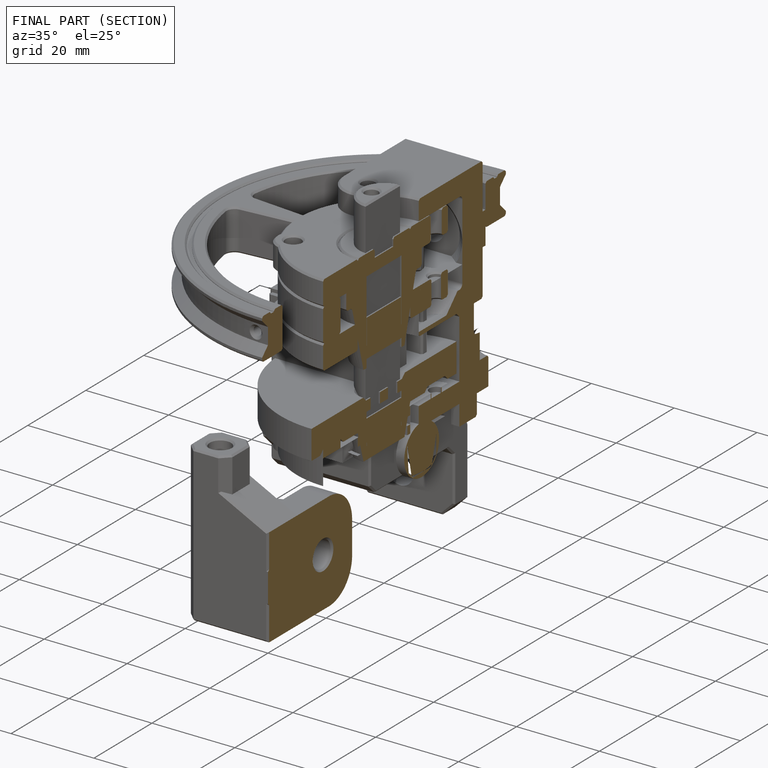
[diagram: finished part — half-section view (interior)]
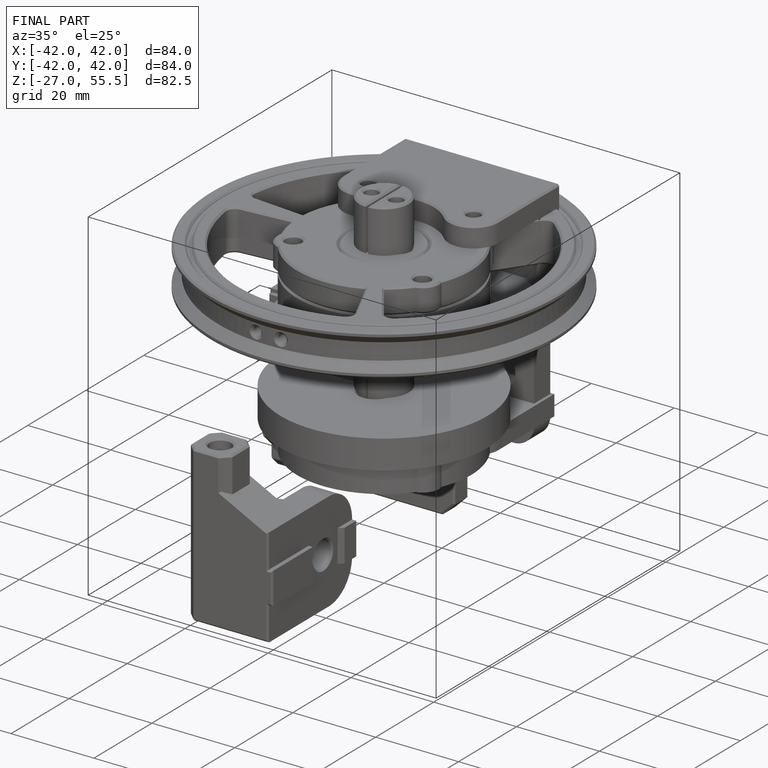
[diagram: finished part — iso view with bounding-box wireframe]
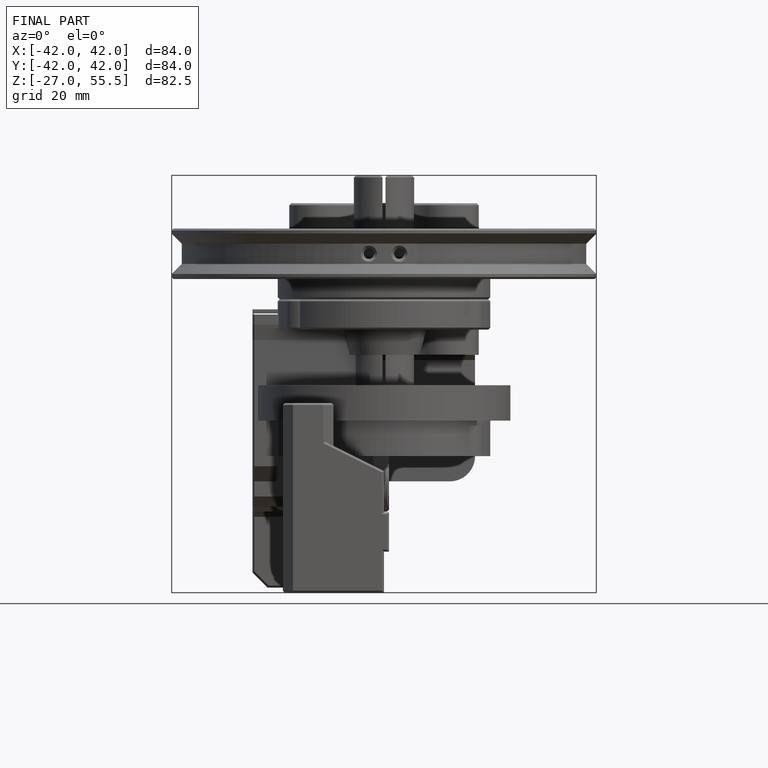
[diagram: finished part — front view with bounding-box wireframe]
